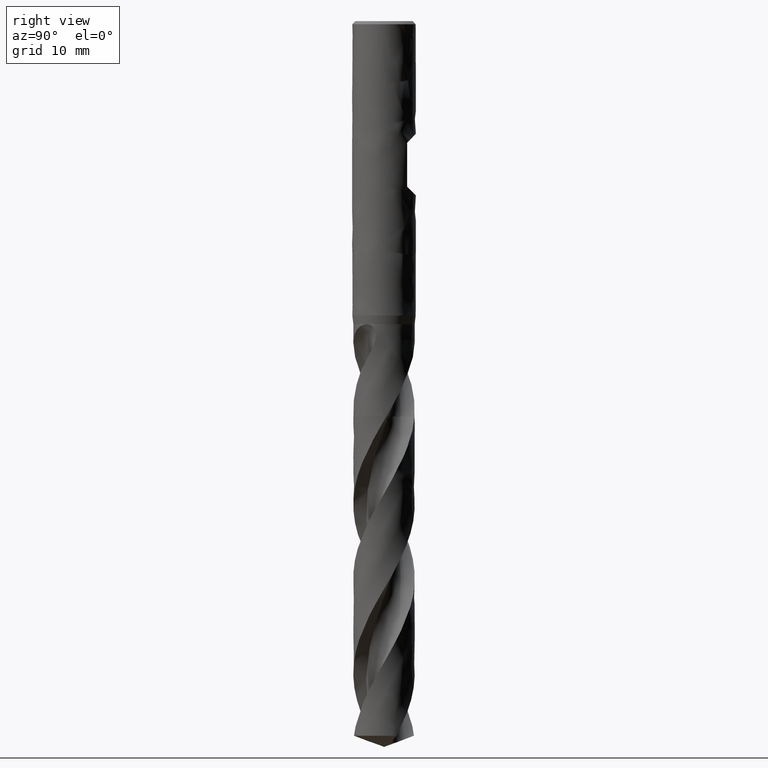
[diagram: clean part render]
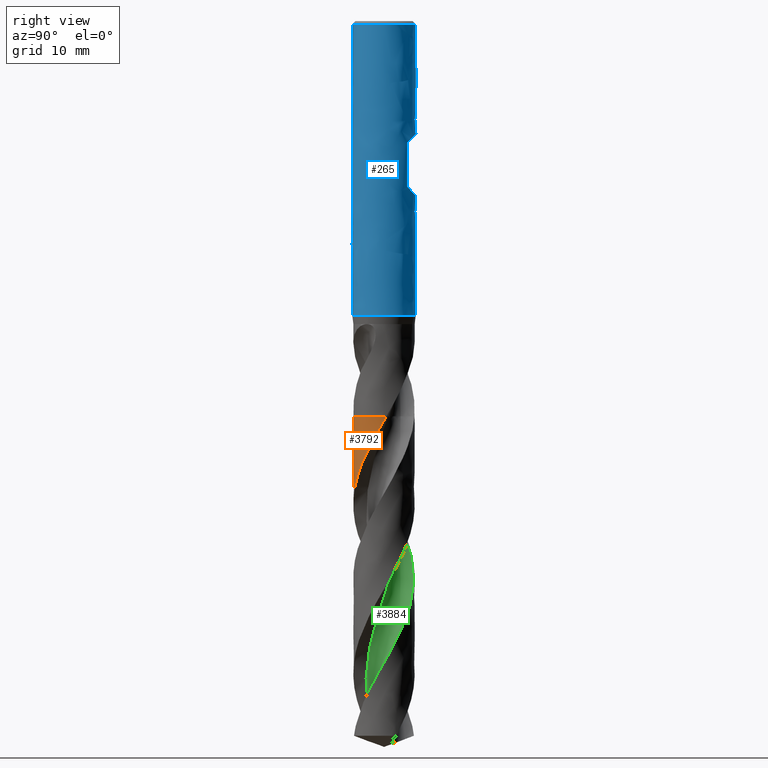
[diagram: same view with three faces highlighted in distinct colors, each labeled with its STEP entity id]
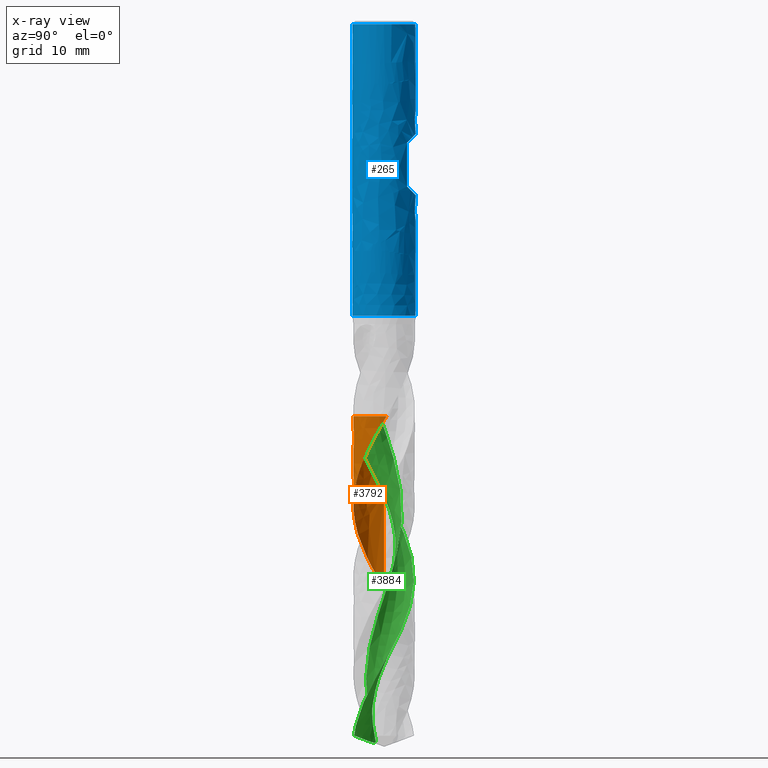
[diagram: x-ray of the same camera — body ghosted, the three highlighted faces saturated]
A machine part, right view with three faces highlighted in distinct colors.
The next image is the same camera in x-ray (body ghosted, the three faces saturated) — at least one of them is partly hidden behind the body in this view.
Their STEP definitions:

[orange] entity #3792 — the highlighted face is a freeform B-spline surface patch.
#1930 = VERTEX_POINT('', #1931);
#1931 = CARTESIAN_POINT('', (-0.466234069556961, -3.82166531663676, -49.55));
#2010 = EDGE_CURVE('', #2011, #1930, #2013, .T.);
#2011 = VERTEX_POINT('', #2012);
#2012 = CARTESIAN_POINT('', (3.83800601079286, 0.303660766510749, -49.55));
#2013 = CIRCLE('', #2014, 3.85);
#2014 = AXIS2_PLACEMENT_3D('', #2015, #2016, #2017);
#2015 = CARTESIAN_POINT('', (1.85782743077238E-31, 3.03406244488757E-15, -49.55));
#2016 = DIRECTION('', (3.74939945665464E-33, 6.12323399573677E-17, -1.));
#2017 = DIRECTION('', (-1., 6.12323399573677E-17, 0.));
#3398 = EDGE_CURVE('', #2011, #3399, #3401, .T.);
#3399 = VERTEX_POINT('', #3400);
#3400 = CARTESIAN_POINT('', (-3.85, 4.59519978251764E-15, -71.1953075240469));
#3401 = B_SPLINE_CURVE_WITH_KNOTS('', 3, (#3402, #3403, #3404, #3405, #3406, #3407, #3408, #3409, #3410, #3411, #3412, #3413, #3414, #3415, #3416, #3417, #3418, #3419, #3420, #3421, #3422, #3423, #3424, #3425, #3426, #3427, #3428, #3429, #3430, #3431, #3432, #3433, #3434, #3435, #3436, #3437, #3438, #3439, #3440, #3441, #3442, #3443, #3444, #3445, #3446, #3447, #3448, #3449, #3450, #3451, #3452, #3453, #3454, #3455, #3456, #3457, #3458, #3459, #3460, #3461, #3462, #3463, #3464, #3465, #3466, #3467, #3468, #3469, #3470, #3471, #3472, #3473, #3474, #3475, #3476, #3477, #3478, #3479, #3480, #3481, #3482, #3483, #3484, #3485, #3486, #3487, #3488, #3489, #3490, #3491, #3492, #3493, #3494, #3495, #3496, #3497, #3498, #3499, #3500, #3501, #3502, #3503, #3504, #3505, #3506, #3507, #3508, #3509, #3510, #3511, #3512, #3513, #3514, #3515, #3516, #3517, #3518, #3519, #3520, #3521, #3522, #3523, #3524, #3525, #3526, #3527, #3528, #3529, #3530, #3531), .UNSPECIFIED., .F., .U., (4, 3, 3, 3, 3, 3, 3, 3, 3, 3, 3, 3, 3, 3, 3, 3, 3, 3, 3, 3, 3, 3, 3, 3, 3, 3, 3, 3, 3, 3, 3, 3, 3, 3, 3, 3, 3, 3, 3, 3, 3, 3, 3, 4), (10.9857827631477, 11.188417739098, 11.4837201776455, 11.5712738476636, 11.62965585615, 12.2960882243106, 12.9623371352114, 13.6284118787598, 14.2943172719508, 14.960058236566, 15.6256386833556, 16.2910615719719, 16.9563293275744, 17.6214440337716, 18.2864071459314, 18.9512194453559, 19.6158810105021, 20.2803912615972, 20.9447493495559, 21.608953908022, 22.2730028992134, 22.9368935374582, 23.6006222185998, 23.7319343610657, 23.7903196670728, 24.4567414647797, 25.1229833398523, 25.7890518383752, 26.4549525460622, 27.1206901327414, 27.7862683922648, 28.4516903106396, 29.1169584224096, 29.7820747374945, 30.4470406419059, 31.1118568765424, 31.7765235141929, 32.4410400979626, 33.105405801609, 33.7696192245882, 34.4336783239857, 35.0975803406812, 35.7613217687518, 35.9290390869403), .UNSPECIFIED.);
#3402 = CARTESIAN_POINT('', (3.83800601079286, 0.303660766510749, -49.55));
#3403 = CARTESIAN_POINT('', (3.8406597006322, 0.270120452194859, -49.608569029255));
#3404 = CARTESIAN_POINT('', (3.84287393979801, 0.236541148428157, -49.6671486422412));
#3405 = CARTESIAN_POINT('', (3.84464734947737, 0.202945209741275, -49.7257190602344));
#3406 = CARTESIAN_POINT('', (3.84723176117826, 0.153985435778242, -49.8110744495448));
#3407 = CARTESIAN_POINT('', (3.84888080603868, 0.104976243516454, -49.8964349491654));
#3408 = CARTESIAN_POINT('', (3.84959334240378, 0.0559562161021219, -49.9817919075163));
#3409 = CARTESIAN_POINT('', (3.84980460098361, 0.0414223594715328, -50.0070992331244));
#3410 = CARTESIAN_POINT('', (3.84993355132485, 0.0268872853742352, -50.032406680502));
#3411 = CARTESIAN_POINT('', (3.84998018530962, 0.0123520331640183, -50.0577140433958));
#3412 = CARTESIAN_POINT('', (3.85001128150119, 0.00265972423267838, -50.0745893459951));
#3413 = CARTESIAN_POINT('', (3.85000577691238, -0.00703270454643437, -50.0914646868949));
#3414 = CARTESIAN_POINT('', (3.84996367208802, -0.0167249395367963, -50.1083400080855));
#3415 = CARTESIAN_POINT('', (3.84948304426219, -0.127362091030246, -50.3009723027961));
#3416 = CARTESIAN_POINT('', (3.84422865657569, -0.238001535680308, -50.4936503107669));
#3417 = CARTESIAN_POINT('', (3.83422389558296, -0.348176849520702, -50.6862880958372));
#3418 = CARTESIAN_POINT('', (3.82422188872722, -0.458321834010137, -50.87887285107));
#3419 = CARTESIAN_POINT('', (3.80946771818799, -0.568053307828705, -51.0715061598658));
#3420 = CARTESIAN_POINT('', (3.79002458757251, -0.676914784589994, -51.264098966706));
#3421 = CARTESIAN_POINT('', (3.77058653967992, -0.785747803345779, -51.4566414269285));
#3422 = CARTESIAN_POINT('', (3.74645291760008, -0.893761914520464, -51.6492315149754));
#3423 = CARTESIAN_POINT('', (3.71772580347537, -1.00050729641205, -51.8417808308007));
#3424 = CARTESIAN_POINT('', (3.68900599325625, -1.10722553815344, -52.0342811907156));
#3425 = CARTESIAN_POINT('', (3.65568196523922, -1.21272429520639, -52.2268294018581));
#3426 = CARTESIAN_POINT('', (3.61789391337796, -1.31656508822878, -52.419336939445));
#3427 = CARTESIAN_POINT('', (3.58011519232496, -1.42038024038106, -52.611796942141));
#3428 = CARTESIAN_POINT('', (3.53785754787914, -1.52258531102665, -52.8043048975619));
#3429 = CARTESIAN_POINT('', (3.49129795518707, -1.62275647837457, -52.9967720682146));
#3430 = CARTESIAN_POINT('', (3.44474958854985, -1.72290349329859, -53.1891928328124));
#3431 = CARTESIAN_POINT('', (3.39388029020878, -1.8210628702524, -53.3816613771972));
#3432 = CARTESIAN_POINT('', (3.33890281896738, -1.91682757844614, -53.5740893481465));
#3433 = CARTESIAN_POINT('', (3.2839383621557, -2.0125696169347, -53.7664717669769));
#3434 = CARTESIAN_POINT('', (3.22484253132079, -2.10596189528421, -53.9589017288472));
#3435 = CARTESIAN_POINT('', (3.16186236225687, -2.19661703584021, -54.1512913551711));
#3436 = CARTESIAN_POINT('', (3.09889687604139, -2.28725104155789, -54.343636128841));
#3437 = CARTESIAN_POINT('', (3.03201983967958, -2.37519096740074, -54.5360283246996));
#3438 = CARTESIAN_POINT('', (2.96151039042569, -2.46007239881281, -54.7283802094637));
#3439 = CARTESIAN_POINT('', (2.89101716235371, -2.54493430267002, -54.9206878423588));
#3440 = CARTESIAN_POINT('', (2.81686094903232, -2.62677797023103, -55.1130430088729));
#3441 = CARTESIAN_POINT('', (2.7393504232359, -2.70526509952671, -55.3053577314649));
#3442 = CARTESIAN_POINT('', (2.66185756376597, -2.78373433990683, -55.4976286213692));
#3443 = CARTESIAN_POINT('', (2.58097692323488, -2.85888403940126, -55.6899471586262));
#3444 = CARTESIAN_POINT('', (2.49704434736988, -2.93040432829125, -55.8822251632055));
#3445 = CARTESIAN_POINT('', (2.41313080729968, -3.00190839647637, -56.0744595593932));
#3446 = CARTESIAN_POINT('', (2.32612904043707, -3.069816809754, -56.2667415686434));
#3447 = CARTESIAN_POINT('', (2.23639991120271, -3.1338499385217, -56.4589831324085));
#3448 = CARTESIAN_POINT('', (2.14669112644084, -3.19786854892466, -56.6511811088431));
#3449 = CARTESIAN_POINT('', (2.05421563854165, -3.25804256985556, -56.8434264604821));
#3450 = CARTESIAN_POINT('', (1.95935719420639, -3.31412422602286, -57.0356316478907));
#3451 = CARTESIAN_POINT('', (1.86452034494485, -3.37019311487663, -57.2277930786763));
#3452 = CARTESIAN_POINT('', (1.76725814110251, -3.42219719987466, -57.4200016498762));
#3453 = CARTESIAN_POINT('', (1.66797416686946, -3.46992250326374, -57.61217019994));
#3454 = CARTESIAN_POINT('', (1.56871292721557, -3.51763687825581, -57.8042947462142));
#3455 = CARTESIAN_POINT('', (1.46738538487668, -3.56109630220109, -57.9964664800108));
#3456 = CARTESIAN_POINT('', (1.36441114158311, -3.60012253079307, -58.1885980892258));
#3457 = CARTESIAN_POINT('', (1.26146069506963, -3.6391397406387, -58.3806852978849));
#3458 = CARTESIAN_POINT('', (1.15681777925634, -3.67374346500184, -58.5728198467729));
#3459 = CARTESIAN_POINT('', (1.05091461640444, -3.70379244410746, -58.7649141251484));
#3460 = CARTESIAN_POINT('', (0.945036257758152, -3.7338343852641, -58.9569634119877));
#3461 = CARTESIAN_POINT('', (0.837850928209692, -3.75933715341995, -59.1490600941136));
#3462 = CARTESIAN_POINT('', (0.729800623026448, -3.78019722377421, -59.3411164989748));
#3463 = CARTESIAN_POINT('', (0.621776084141214, -3.80105231971597, -59.5331271049597));
#3464 = CARTESIAN_POINT('', (0.512838642037153, -3.8172762545525, -59.7251849390947));
#3465 = CARTESIAN_POINT('', (0.403437575832972, -3.82880374561117, -59.9172027312444));
#3466 = CARTESIAN_POINT('', (0.294063198180721, -3.84032842452135, -60.1091736803698));
#3467 = CARTESIAN_POINT('', (0.184175763604534, -3.84716416562427, -60.3011915549341));
#3468 = CARTESIAN_POINT('', (0.0742288039468324, -3.84928436006811, -60.4931696496648));
#3469 = CARTESIAN_POINT('', (0.0524768874778473, -3.84970381952914, -60.5311506133354));
#3470 = CARTESIAN_POINT('', (0.0307214690042521, -3.84993889463845, -60.5691320553479));
#3471 = CARTESIAN_POINT('', (0.00896604345663941, -3.84998955973451, -60.6071132916357));
#3472 = CARTESIAN_POINT('', (-0.000707069433455552, -3.85001208695158, -60.6240008852851));
#3473 = CARTESIAN_POINT('', (-0.0103802394914002, -3.84999815824868, -60.6408885341667));
#3474 = CARTESIAN_POINT('', (-0.0200531578907964, -3.84994777508214, -60.6577761790855));
#3475 = CARTESIAN_POINT('', (-0.130461822495741, -3.84937269133732, -60.8505352045229));
#3476 = CARTESIAN_POINT('', (-0.240864733995843, -3.84404367760486, -61.0433417542151));
#3477 = CARTESIAN_POINT('', (-0.350803028482814, -3.83398451160261, -61.2361080127081));
#3478 = CARTESIAN_POINT('', (-0.460711641486346, -3.82392806140535, -61.4288222275658));
#3479 = CARTESIAN_POINT('', (-0.570206537894004, -3.8091393770798, -61.6215837859571));
#3480 = CARTESIAN_POINT('', (-0.678832875322091, -3.78968150738061, -61.8143051239944));
#3481 = CARTESIAN_POINT('', (-0.787430944848844, -3.77022870121532, -62.0069763100345));
#3482 = CARTESIAN_POINT('', (-0.895210652450566, -3.74610025362731, -62.1996949535274));
#3483 = CARTESIAN_POINT('', (-1.00172539476705, -3.71739777713915, -62.3923732237486));
#3484 = CARTESIAN_POINT('', (-1.10821330471165, -3.68870253115736, -62.5850029559469));
#3485 = CARTESIAN_POINT('', (-1.21348491758035, -3.65542264441597, -62.7776803064285));
#3486 = CARTESIAN_POINT('', (-1.31710516335854, -3.6176973323724, -62.9703171443625));
#3487 = CARTESIAN_POINT('', (-1.4207000260147, -3.5799812616329, -63.1629067934066));
#3488 = CARTESIAN_POINT('', (-1.52269059232123, -3.53780511005229, -63.3555440734511));
#3489 = CARTESIAN_POINT('', (-1.62265591820821, -3.49134469382556, -63.5481408902059));
#3490 = CARTESIAN_POINT('', (-1.72259731996746, -3.4448953967036, -63.7406916138698));
#3491 = CARTESIAN_POINT('', (-1.82055933731122, -3.39414300410734, -63.9332897222669));
#3492 = CARTESIAN_POINT('', (-1.91613738601963, -3.33929895605318, -64.1258476854115));
#3493 = CARTESIAN_POINT('', (-2.01169298390169, -3.28446779060351, -64.3183604176118));
#3494 = CARTESIAN_POINT('', (-2.10490941502601, -3.22552180763487, -64.5109202218185));
#3495 = CARTESIAN_POINT('', (-2.19540147640186, -3.16270649245429, -64.7034401014598));
#3496 = CARTESIAN_POINT('', (-2.28587262130903, -3.0999056964984, -64.8959154817719));
#3497 = CARTESIAN_POINT('', (-2.37366215521971, -3.03320856857617, -65.0884379438504));
#3498 = CARTESIAN_POINT('', (-2.45840798508757, -2.96289219831867, -65.2809203909816));
#3499 = CARTESIAN_POINT('', (-2.54313447818604, -2.89259187240741, -65.473358918681));
#3500 = CARTESIAN_POINT('', (-2.62485698860236, -2.8186421883365, -65.6658447191663));
#3501 = CARTESIAN_POINT('', (-2.70323948071356, -2.74134935933227, -65.8582903086561));
#3502 = CARTESIAN_POINT('', (-2.78160424725833, -2.66407400947599, -66.0506923781329));
#3503 = CARTESIAN_POINT('', (-2.8566654101441, -2.58342263556965, -66.2431418424347));
#3504 = CARTESIAN_POINT('', (-2.92811507778246, -2.49972840349967, -66.4355510240829));
#3505 = CARTESIAN_POINT('', (-2.99954866361032, -2.41605300923292, -66.6279168984898));
#3506 = CARTESIAN_POINT('', (-3.06740410090954, -2.3292989591975, -66.8203300439808));
#3507 = CARTESIAN_POINT('', (-3.13140321158257, -2.23982453029035, -67.0127031159817));
#3508 = CARTESIAN_POINT('', (-3.19538792117216, -2.15037023492416, -67.2050329001832));
#3509 = CARTESIAN_POINT('', (-3.25554688357959, -2.05815641650453, -67.3974096047342));
#3510 = CARTESIAN_POINT('', (-3.31163329407851, -1.96356434209594, -67.5897465848711));
#3511 = CARTESIAN_POINT('', (-3.36770704261567, -1.86899362261484, -67.7820401433757));
#3512 = CARTESIAN_POINT('', (-3.41973573119292, -1.77200245369665, -67.9743804486269));
#3513 = CARTESIAN_POINT('', (-3.46750618406489, -1.67299159097459, -68.1666810773206));
#3514 = CARTESIAN_POINT('', (-3.51526579053816, -1.57400320891221, -68.358938043684));
#3515 = CARTESIAN_POINT('', (-3.55879079276785, -1.47295114301325, -68.5512419179997));
#3516 = CARTESIAN_POINT('', (-3.59790357796416, -1.37025174463408, -68.7435059149305));
#3517 = CARTESIAN_POINT('', (-3.63700739803629, -1.26757588620109, -68.9357258426242));
#3518 = CARTESIAN_POINT('', (-3.6717184703276, -1.16320772033958, -69.1279928782281));
#3519 = CARTESIAN_POINT('', (-3.70189585425081, -1.05757604184317, -69.3202198670963));
#3520 = CARTESIAN_POINT('', (-3.73206622674997, -0.951968905848314, -69.5124021938779));
#3521 = CARTESIAN_POINT('', (-3.75771832098156, -0.845052302333049, -69.7046316359959));
#3522 = CARTESIAN_POINT('', (-3.77874851414, -0.7372649909529, -69.8968211043808));
#3523 = CARTESIAN_POINT('', (-3.79977373262139, -0.629503176583666, -70.0889651104854));
#3524 = CARTESIAN_POINT('', (-3.8161885652271, -0.520823125868125, -70.2811559240995));
#3525 = CARTESIAN_POINT('', (-3.82792720079552, -0.411671404654177, -70.4733071502764));
#3526 = CARTESIAN_POINT('', (-3.83966299695195, -0.302546085717027, -70.6654118977556));
#3527 = CARTESIAN_POINT('', (-3.84673017377257, -0.192899736524134, -70.8575631145927));
#3528 = CARTESIAN_POINT('', (-3.84910126568448, -0.0831832104842943, -71.0496749569801));
#3529 = CARTESIAN_POINT('', (-3.84970040438492, -0.0554595206102968, -71.098218684454));
#3530 = CARTESIAN_POINT('', (-3.85, -0.0277293729271328, -71.1467633451832));
#3531 = CARTESIAN_POINT('', (-3.85, 4.37030618227452E-15, -71.1953075240469));
#3792 = ADVANCED_FACE('', (#3793), #3869, .T.);
#3793 = FACE_OUTER_BOUND('', #3794, .T.);
#3794 = EDGE_LOOP('', (#3795, #3796, #3814, #3862, #3868));
#3795 = ORIENTED_EDGE('', *, *, #2010, .T.);
#3796 = ORIENTED_EDGE('', *, *, #3797, .T.);
#3797 = EDGE_CURVE('', #1930, #3798, #3800, .T.);
#3798 = VERTEX_POINT('', #3799);
#3799 = CARTESIAN_POINT('', (-1.45666502012637, -3.56379390806206, -51.3306105071911));
#3800 = B_SPLINE_CURVE_WITH_KNOTS('', 3, (#3801, #3802, #3803, #3804, #3805, #3806, #3807, #3808, #3809, #3810, #3811, #3812, #3813), .UNSPECIFIED., .F., .U., (4, 3, 3, 3, 4), (4.62056826105621, 5.1008620138791, 5.76693631559316, 6.43283720181329, 6.67571903307602), .UNSPECIFIED.);
#3801 = CARTESIAN_POINT('', (-0.466234069556961, -3.82166531663676, -49.55));
#3802 = CARTESIAN_POINT('', (-0.545619925295997, -3.81198043124783, -49.6886918603447));
#3803 = CARTESIAN_POINT('', (-0.624715389142582, -3.79981905662139, -49.8274253677953));
#3804 = CARTESIAN_POINT('', (-0.703333355903876, -3.78521098361412, -49.9661234670167));
#3805 = CARTESIAN_POINT('', (-0.812361231042654, -3.76495241899503, -50.158470835778));
#3806 = CARTESIAN_POINT('', (-0.92053796568616, -3.73997403876184, -50.3508631322355));
#3807 = CARTESIAN_POINT('', (-1.02740387030935, -3.71038290305356, -50.5432144784321));
#3808 = CARTESIAN_POINT('', (-1.134241951905, -3.68079947153294, -50.7355157450752));
#3809 = CARTESIAN_POINT('', (-1.23981898995678, -3.64659224590057, -50.9278657991517));
#3810 = CARTESIAN_POINT('', (-1.3436918872865, -3.60790688793929, -51.1201759562725));
#3811 = CARTESIAN_POINT('', (-1.381578666001, -3.59379672413095, -51.1903194927934));
#3812 = CARTESIAN_POINT('', (-1.41924332569911, -3.57908965037272, -51.2604658174911));
#3813 = CARTESIAN_POINT('', (-1.4566650201263, -3.56379390806209, -51.3306105071909));
#3814 = ORIENTED_EDGE('', *, *, #3815, .T.);
#3815 = EDGE_CURVE('', #3798, #3816, #3818, .T.);
#3816 = VERTEX_POINT('', #3817);
#3817 = CARTESIAN_POINT('', (-3.85, 3.86352565080285E-15, -59.2461621504713));
#3818 = B_SPLINE_CURVE_WITH_KNOTS('', 3, (#3819, #3820, #3821, #3822, #3823, #3824, #3825, #3826, #3827, #3828, #3829, #3830, #3831, #3832, #3833, #3834, #3835, #3836, #3837, #3838, #3839, #3840, #3841, #3842, #3843, #3844, #3845, #3846, #3847, #3848, #3849, #3850, #3851, #3852, #3853, #3854, #3855, #3856, #3857, #3858, #3859, #3860, #3861), .UNSPECIFIED., .F., .U., (4, 3, 3, 3, 3, 3, 3, 3, 3, 3, 3, 3, 3, 3, 4), (0., 0.665672393701589, 1.3311833576744, 1.99653631614583, 2.66173367267049, 3.32677704485421, 3.99166738304427, 4.65640534694408, 5.32099112008307, 5.98542423593742, 6.64970352953601, 7.31382709259064, 7.9777925041051, 8.64159691544613, 9.13124469862943), .UNSPECIFIED.);
#3819 = CARTESIAN_POINT('', (-1.45666502012637, -3.56379390806206, -51.3306105071911));
#3820 = CARTESIAN_POINT('', (-1.55922760694566, -3.52187247925683, -51.5228578369119));
#3821 = CARTESIAN_POINT('', (-1.65999314968207, -3.47551354918123, -51.7151556139758));
#3822 = CARTESIAN_POINT('', (-1.75853963301689, -3.42491435792325, -51.9074154346855));
#3823 = CARTESIAN_POINT('', (-1.85706221821169, -3.37432743728639, -52.0996286311833));
#3824 = CARTESIAN_POINT('', (-1.95341295537382, -3.31947866988887, -52.291892695357));
#3825 = CARTESIAN_POINT('', (-2.04718998331014, -3.26060012455294, -52.4841186956053));
#3826 = CARTESIAN_POINT('', (-2.14094474672023, -3.20173555815135, -52.6762990575888));
#3827 = CARTESIAN_POINT('', (-2.23217009410771, -3.13881614152388, -52.8685305848131));
#3828 = CARTESIAN_POINT('', (-2.32048730592337, -3.0721065513827, -53.0607236779569));
#3829 = CARTESIAN_POINT('', (-2.40878386354352, -3.0054125621973, -53.2528718241006));
#3830 = CARTESIAN_POINT('', (-2.49421338934431, -2.93490017035575, -53.4450711802976));
#3831 = CARTESIAN_POINT('', (-2.57642202907615, -2.86086517125346, -53.6372321513839));
#3832 = CARTESIAN_POINT('', (-2.65861163860128, -2.7868473102688, -53.8293486397612));
#3833 = CARTESIAN_POINT('', (-2.73761911449451, -2.70927488113451, -54.0215159954706));
#3834 = CARTESIAN_POINT('', (-2.81311699278049, -2.62847347046335, -54.2136454392654));
#3835 = CARTESIAN_POINT('', (-2.88859749815169, -2.54769065310969, -54.4057306719046));
#3836 = CARTESIAN_POINT('', (-2.96060521266316, -2.46364263404195, -54.5978662569824));
#3837 = CARTESIAN_POINT('', (-3.02884143860414, -2.37668246507487, -54.7899642875587));
#3838 = CARTESIAN_POINT('', (-3.09706202670848, -2.28974222494908, -54.982018294633));
#3839 = CARTESIAN_POINT('', (-3.16154490369304, -2.1998503612591, -55.1741226561259));
#3840 = CARTESIAN_POINT('', (-3.22202345147219, -2.10738341982735, -55.366189325875));
#3841 = CARTESIAN_POINT('', (-3.28248815277845, -2.01493764856329, -55.5582120222479));
#3842 = CARTESIAN_POINT('', (-3.33897821598286, -1.91987546990003, -55.7502853739222));
#3843 = CARTESIAN_POINT('', (-3.39126136369393, -1.82259330710851, -55.9423207090014));
#3844 = CARTESIAN_POINT('', (-3.44353250181395, -1.72533349031267, -56.1343119330058));
#3845 = CARTESIAN_POINT('', (-3.49162215885457, -1.62581104814568, -56.3263540256896));
#3846 = CARTESIAN_POINT('', (-3.53533363591626, -1.52443959629732, -56.5183579565386));
#3847 = CARTESIAN_POINT('', (-3.57903499337697, -1.42309161285387, -56.7103174367467));
#3848 = CARTESIAN_POINT('', (-3.6183797249224, -1.31985016483848, -56.9023276059716));
#3849 = CARTESIAN_POINT('', (-3.65320741177322, -1.21514427397129, -57.0942999297062));
#3850 = CARTESIAN_POINT('', (-3.68802693378333, -1.11046292986552, -57.2862272483434));
#3851 = CARTESIAN_POINT('', (-3.71834744022811, -1.00426987207032, -57.4782047127823));
#3852 = CARTESIAN_POINT('', (-3.74404566452303, -0.897007280888152, -57.6701448502133));
#3853 = CARTESIAN_POINT('', (-3.76973776915291, -0.789770232759927, -57.8620392798422));
#3854 = CARTESIAN_POINT('', (-3.79082180252473, -0.681414032877766, -58.0539836114666));
#3855 = CARTESIAN_POINT('', (-3.80721292890844, -0.572389477499845, -58.2458906674981));
#3856 = CARTESIAN_POINT('', (-3.82360008072638, -0.463391358698319, -58.4377511893748));
#3857 = CARTESIAN_POINT('', (-3.83530421009536, -0.353674885753003, -58.6296618613033));
#3858 = CARTESIAN_POINT('', (-3.84227965106878, -0.243694651116912, -58.8215349436113));
#3859 = CARTESIAN_POINT('', (-3.84742500586156, -0.162568980417089, -58.9630679430905));
#3860 = CARTESIAN_POINT('', (-3.85, -0.0812766390948183, -59.1046222373673));
#3861 = CARTESIAN_POINT('', (-3.85, 2.09410770530651E-15, -59.2461621504713));
#3862 = ORIENTED_EDGE('', *, *, #3863, .T.);
#3863 = EDGE_CURVE('', #3816, #3399, #3864, .T.);
#3864 = LINE('', #3865, #3866);
#3865 = CARTESIAN_POINT('', (-3.85, 3.86352565080285E-15, -59.2461621504713));
#3866 = VECTOR('', #3867, 11.9491453735756);
#3867 = DIRECTION('', (0., 7.31674131714791E-16, -11.9491453735756));
#3868 = ORIENTED_EDGE('', *, *, #3398, .F.);
#3869 = (
   BOUNDED_SURFACE ()
   B_SPLINE_SURFACE (2, 1, ((#3870, #3871), (#3872, #3873), (#3874, #3875), (#3876, #3877), (#3878, #3879), (#3880, #3881), (#3882, #3883)), .UNSPECIFIED., .F., .F., .U.)
   B_SPLINE_SURFACE_WITH_KNOTS ((3, 2, 2, 3), (2, 2), (11.7627610006388, 12.0951317163207, 18.1426975744811, 24.1902634326414), (0.223842785425334, 0.643335939327551), .UNSPECIFIED.)
   GEOMETRIC_REPRESENTATION_ITEM ()
   RATIONAL_B_SPLINE_SURFACE (((0.969574906929634, 0.969574906929634), (0.983902758392611, 0.983902758392611), (1., 1.), (0.707106781186548, 0.707106781186548), (1., 1.), (0.707106781186548, 0.707106781186548), (1., 1.)))
   REPRESENTATION_ITEM ('')
   SURFACE ()
);
#3870 = CARTESIAN_POINT('', (3.83800601079285, 0.303660766510884, -49.55));
#3871 = CARTESIAN_POINT('', (3.83800601079285, 0.303660766510885, -71.1953075240469));
#3872 = CARTESIAN_POINT('', (3.85, 0.152067252474267, -49.55));
#3873 = CARTESIAN_POINT('', (3.85, 0.152067252474268, -71.1953075240469));
#3874 = CARTESIAN_POINT('', (3.85, 3.26980695372343E-15, -49.55));
#3875 = CARTESIAN_POINT('', (3.85, 4.59519978251764E-15, -71.1953075240469));
#3876 = CARTESIAN_POINT('', (3.85, -3.85, -49.55));
#3877 = CARTESIAN_POINT('', (3.85, -3.84999999999999, -71.1953075240469));
#3878 = CARTESIAN_POINT('', (4.71489017671731E-16, -3.85, -49.55));
#3879 = CARTESIAN_POINT('', (4.71489017671731E-16, -3.85, -71.1953075240469));
#3880 = CARTESIAN_POINT('', (-3.85, -3.85, -49.55));
#3881 = CARTESIAN_POINT('', (-3.85, -3.85, -71.1953075240469));
#3882 = CARTESIAN_POINT('', (-3.85, 3.26980695372343E-15, -49.55));
#3883 = CARTESIAN_POINT('', (-3.85, 4.59519978251764E-15, -71.1953075240469));

[blue] entity #265 — the highlighted face is a freeform B-spline surface patch.
#146 = VERTEX_POINT('', #147);
#147 = CARTESIAN_POINT('', (-4., 2.5053211893557E-15, -36.915));
#153 = EDGE_CURVE('', #146, #146, #154, .T.);
#154 = CIRCLE('', #155, 4.);
#155 = AXIS2_PLACEMENT_3D('', #156, #157, #158);
#156 = CARTESIAN_POINT('', (1.38409080942406E-31, 2.26039182952623E-15, -36.915));
#157 = DIRECTION('', (3.74939945665464E-33, 6.12323399573677E-17, -1.));
#158 = DIRECTION('', (-1., 6.12323399573677E-17, 0.));
#214 = VERTEX_POINT('', #215);
#215 = CARTESIAN_POINT('', (-4., 2.69422295812418E-16, -0.399999999999999));
#231 = EDGE_CURVE('', #214, #214, #232, .T.);
#232 = CIRCLE('', #233, 4.);
#233 = AXIS2_PLACEMENT_3D('', #234, #235, #236);
#234 = CARTESIAN_POINT('', (1.49975978266185E-33, 2.44929359829471E-17, -0.399999999999999));
#235 = DIRECTION('', (3.74939945665464E-33, 6.12323399573677E-17, -1.));
#236 = DIRECTION('', (-1., 6.12323399573677E-17, 0.));
#265 = ADVANCED_FACE('', (#266, #277), #448, .T.);
#266 = FACE_OUTER_BOUND('', #267, .T.);
#267 = EDGE_LOOP('', (#268, #274, #275, #276));
#268 = ORIENTED_EDGE('', *, *, #269, .T.);
#269 = EDGE_CURVE('', #146, #214, #270, .T.);
#270 = LINE('', #271, #272);
#271 = CARTESIAN_POINT('', (-4., 2.5053211893557E-15, -36.915));
#272 = VECTOR('', #273, 36.515);
#273 = DIRECTION('', (0., -2.23589889354328E-15, 36.515));
#274 = ORIENTED_EDGE('', *, *, #231, .T.);
#275 = ORIENTED_EDGE('', *, *, #269, .F.);
#276 = ORIENTED_EDGE('', *, *, #153, .F.);
#277 = FACE_BOUND('', #278, .T.);
#278 = EDGE_LOOP('', (#279, #356, #364, #442));
#279 = ORIENTED_EDGE('', *, *, #280, .F.);
#280 = EDGE_CURVE('', #281, #283, #285, .T.);
#281 = VERTEX_POINT('', #282);
#282 = CARTESIAN_POINT('', (-2.75499546279118, 2.9, -15.25));
#283 = VERTEX_POINT('', #284);
#284 = CARTESIAN_POINT('', (2.75499546279118, 2.9, -15.25));
#285 = B_SPLINE_CURVE_WITH_KNOTS('', 3, (#286, #287, #288, #289, #290, #291, #292, #293, #294, #295, #296, #297, #298, #299, #300, #301, #302, #303, #304, #305, #306, #307, #308, #309, #310, #311, #312, #313, #314, #315, #316, #317, #318, #319, #320, #321, #322, #323, #324, #325, #326, #327, #328, #329, #330, #331, #332, #333, #334, #335, #336, #337, #338, #339, #340, #341, #342, #343, #344, #345, #346, #347, #348, #349, #350, #351, #352, #353, #354, #355), .UNSPECIFIED., .F., .U., (4, 3, 3, 3, 3, 3, 3, 3, 3, 3, 3, 3, 3, 3, 3, 3, 3, 3, 3, 3, 3, 3, 3, 4), (0., 0.0275651498824168, 0.323329754227843, 0.619223800657675, 0.915270205533211, 1.21149541087731, 1.50792863848376, 1.80460015310044, 2.10153821450145, 2.39876467460959, 2.69628978664823, 2.99410761532925, 3.29009749181974, 3.58608736831022, 3.88390519699124, 4.18143030902988, 4.47865676913802, 4.77559483053904, 5.07226634515571, 5.36869957276216, 5.66492477810626, 5.96097118298179, 6.25686522941163, 6.58019498363947), .UNSPECIFIED.);
#286 = CARTESIAN_POINT('', (-2.75499546279118, 2.9, -15.25));
#287 = CARTESIAN_POINT('', (-2.7495403313511, 2.90518236633323, -15.2447263857062));
#288 = CARTESIAN_POINT('', (-2.74406521982218, 2.91035442984719, -15.2394632556375));
#289 = CARTESIAN_POINT('', (-2.73857013102126, 2.91551601564427, -15.2342107877709));
#290 = CARTESIAN_POINT('', (-2.67960971281275, 2.97089806100157, -15.1778536089774));
#291 = CARTESIAN_POINT('', (-2.61831798837027, 3.0251023412273, -15.122694932689));
#292 = CARTESIAN_POINT('', (-2.55471049779374, 3.07789770337849, -15.0689699818493));
#293 = CARTESIAN_POINT('', (-2.49107516924727, 3.13071617154582, -15.0152215181567));
#294 = CARTESIAN_POINT('', (-2.42505948854959, 3.18217572696542, -14.9628558941227));
#295 = CARTESIAN_POINT('', (-2.35670846888833, 3.23201565476873, -14.9121384151249));
#296 = CARTESIAN_POINT('', (-2.28832225468618, 3.28188124558901, -14.8613948212512));
#297 = CARTESIAN_POINT('', (-2.21752118151808, 3.33018085032992, -14.8122447863892));
#298 = CARTESIAN_POINT('', (-2.14439231660005, 3.37662280874054, -14.7649851061665));
#299 = CARTESIAN_POINT('', (-2.07121928470315, 3.42309281628059, -14.7176968829422));
#300 = CARTESIAN_POINT('', (-1.99562068806062, 3.46776202565152, -14.6722411652482));
#301 = CARTESIAN_POINT('', (-1.91774147403305, 3.51030876687135, -14.628945286836));
#302 = CARTESIAN_POINT('', (-1.83980756982381, 3.55288538626901, -14.5856190041692));
#303 = CARTESIAN_POINT('', (-1.75947339354897, 3.59339861346788, -14.5443924446584));
#304 = CARTESIAN_POINT('', (-1.6769604661359, 3.63150156202879, -14.5056186025088));
#305 = CARTESIAN_POINT('', (-1.59438121093989, 3.66963513953696, -14.466813592116));
#306 = CARTESIAN_POINT('', (-1.50947809076678, 3.70541802112886, -14.4304006672663));
#307 = CARTESIAN_POINT('', (-1.42256919709379, 3.73848858223216, -14.3967478197978));
#308 = CARTESIAN_POINT('', (-1.33558221946264, 3.77158885583323, -14.363064736672));
#309 = CARTESIAN_POINT('', (-1.2464160027603, 3.80203429897799, -14.3320832286455));
#310 = CARTESIAN_POINT('', (-1.15550315645899, 3.82946634081219, -14.3041681800707));
#311 = CARTESIAN_POINT('', (-1.06450201178593, 3.85692502579669, -14.2762260192292));
#312 = CARTESIAN_POINT('', (-0.971551110465514, 3.88142225604713, -14.251297456619));
#313 = CARTESIAN_POINT('', (-0.877208103576912, 3.90262808156492, -14.2297182517981));
#314 = CARTESIAN_POINT('', (-0.782770301221156, 3.92385521460939, -14.2081173642804));
#315 = CARTESIAN_POINT('', (-0.686708873945093, 3.94183334457734, -14.1898226863132));
#316 = CARTESIAN_POINT('', (-0.589703064917672, 3.95629249363931, -14.1751089493317));
#317 = CARTESIAN_POINT('', (-0.492601817846333, 3.97076586816795, -14.1603807364101));
#318 = CARTESIAN_POINT('', (-0.394300865590991, 3.98174917183471, -14.1492040453995));
#319 = CARTESIAN_POINT('', (-0.295578376007088, 3.98906422906892, -14.141760189078));
#320 = CARTESIAN_POINT('', (-0.197461827282699, 3.99633438779939, -14.1343620218058));
#321 = CARTESIAN_POINT('', (-0.0986632921634954, 4., -14.1306318677307));
#322 = CARTESIAN_POINT('', (1.22464679914735E-16, 4., -14.1306318677307));
#323 = CARTESIAN_POINT('', (0.0986632921634953, 4., -14.1306318677307));
#324 = CARTESIAN_POINT('', (0.197461827282699, 3.99633438779939, -14.1343620218057));
#325 = CARTESIAN_POINT('', (0.295578376007088, 3.98906422906892, -14.1417601890779));
#326 = CARTESIAN_POINT('', (0.394300865590992, 3.98174917183471, -14.1492040453995));
#327 = CARTESIAN_POINT('', (0.492601817846333, 3.97076586816795, -14.1603807364101));
#328 = CARTESIAN_POINT('', (0.589703064917672, 3.95629249363931, -14.1751089493317));
#329 = CARTESIAN_POINT('', (0.686708873945093, 3.94183334457734, -14.1898226863132));
#330 = CARTESIAN_POINT('', (0.782770301221156, 3.92385521460939, -14.2081173642804));
#331 = CARTESIAN_POINT('', (0.877208103576912, 3.90262808156492, -14.2297182517981));
#332 = CARTESIAN_POINT('', (0.971551110465513, 3.88142225604713, -14.251297456619));
#333 = CARTESIAN_POINT('', (1.06450201178593, 3.85692502579669, -14.2762260192292));
#334 = CARTESIAN_POINT('', (1.15550315645899, 3.82946634081219, -14.3041681800707));
#335 = CARTESIAN_POINT('', (1.2464160027603, 3.80203429897799, -14.3320832286455));
#336 = CARTESIAN_POINT('', (1.33558221946264, 3.77158885583323, -14.363064736672));
#337 = CARTESIAN_POINT('', (1.4225691970938, 3.73848858223216, -14.3967478197978));
#338 = CARTESIAN_POINT('', (1.50947809076678, 3.70541802112886, -14.4304006672663));
#339 = CARTESIAN_POINT('', (1.59438121093989, 3.66963513953696, -14.466813592116));
#340 = CARTESIAN_POINT('', (1.6769604661359, 3.63150156202879, -14.5056186025088));
#341 = CARTESIAN_POINT('', (1.75947339354897, 3.59339861346788, -14.5443924446584));
#342 = CARTESIAN_POINT('', (1.83980756982381, 3.55288538626901, -14.5856190041692));
#343 = CARTESIAN_POINT('', (1.91774147403305, 3.51030876687135, -14.628945286836));
#344 = CARTESIAN_POINT('', (1.99562068806062, 3.46776202565152, -14.6722411652482));
#345 = CARTESIAN_POINT('', (2.07121928470314, 3.42309281628059, -14.7176968829422));
#346 = CARTESIAN_POINT('', (2.14439231660005, 3.37662280874054, -14.7649851061665));
#347 = CARTESIAN_POINT('', (2.21752118151808, 3.33018085032992, -14.8122447863892));
#348 = CARTESIAN_POINT('', (2.28832225468618, 3.28188124558901, -14.8613948212512));
#349 = CARTESIAN_POINT('', (2.35670846888833, 3.23201565476873, -14.9121384151248));
#350 = CARTESIAN_POINT('', (2.42505948854959, 3.18217572696542, -14.9628558941227));
#351 = CARTESIAN_POINT('', (2.49107516924727, 3.13071617154582, -15.0152215181567));
#352 = CARTESIAN_POINT('', (2.55471049779373, 3.07789770337849, -15.0689699818493));
#353 = CARTESIAN_POINT('', (2.62424618256803, 3.02018183333213, -15.1277020779003));
#354 = CARTESIAN_POINT('', (2.69100864192036, 2.9607873797164, -15.1881423130012));
#355 = CARTESIAN_POINT('', (2.75499546279118, 2.9, -15.25));
#356 = ORIENTED_EDGE('', *, *, #357, .T.);
#357 = EDGE_CURVE('', #281, #358, #360, .T.);
#358 = VERTEX_POINT('', #359);
#359 = CARTESIAN_POINT('', (-2.75499546279118, 2.9, -20.75));
#360 = LINE('', #361, #362);
#361 = CARTESIAN_POINT('', (-2.75499546279118, 2.9, -15.25));
#362 = VECTOR('', #363, 5.5);
#363 = DIRECTION('', (0., 0., -5.5));
#364 = ORIENTED_EDGE('', *, *, #365, .T.);
#365 = EDGE_CURVE('', #358, #366, #368, .T.);
#366 = VERTEX_POINT('', #367);
#367 = CARTESIAN_POINT('', (2.75499546279118, 2.9, -20.75));
#368 = B_SPLINE_CURVE_WITH_KNOTS('', 3, (#369, #370, #371, #372, #373, #374, #375, #376, #377, #378, #379, #380, #381, #382, #383, #384, #385, #386, #387, #388, #389, #390, #391, #392, #393, #394, #395, #396, #397, #398, #399, #400, #401, #402, #403, #404, #405, #406, #407, #408, #409, #410, #411, #412, #413, #414, #415, #416, #417, #418, #419, #420, #421, #422, #423, #424, #425, #426, #427, #428, #429, #430, #431, #432, #433, #434, #435, #436, #437, #438, #439, #440, #441), .UNSPECIFIED., .F., .U., (4, 3, 3, 3, 3, 3, 3, 3, 3, 3, 3, 3, 3, 3, 3, 3, 3, 3, 3, 3, 3, 3, 3, 3, 4), (0., 0.443422422205695, 0.738860713972584, 1.03418677767532, 1.32938252694556, 1.62442725505234, 1.91929816542726, 2.21397155727197, 2.50842487936361, 2.80263970976592, 2.99894085104869, 3.29007345814309, 3.4872474966482, 3.68530175003223, 3.88327465622289, 4.08116298771897, 4.27896576611938, 4.57609603156437, 4.872944030885, 5.16953426674175, 5.46589607815954, 5.76205965536999, 6.05805344567496, 6.35390278155854, 6.58042418211351), .UNSPECIFIED.);
#369 = CARTESIAN_POINT('', (-2.75499546279118, 2.9, -20.75));
#370 = CARTESIAN_POINT('', (-2.66724235399505, 2.98336531606178, -20.8348331619419));
#371 = CARTESIAN_POINT('', (-2.57422027727393, 3.06415258604797, -20.9170428851383));
#372 = CARTESIAN_POINT('', (-2.47599571183059, 3.14156732141782, -20.9958206921756));
#373 = CARTESIAN_POINT('', (-2.41055180017683, 3.19314630351234, -21.048307845677));
#374 = CARTESIAN_POINT('', (-2.34271971299793, 3.24329045867949, -21.0993349086891));
#375 = CARTESIAN_POINT('', (-2.27255949630797, 3.2917280166716, -21.1486253257994));
#376 = CARTESIAN_POINT('', (-2.2024259313606, 3.34014717470163, -21.1978970189722));
#377 = CARTESIAN_POINT('', (-2.12988274348655, 3.38691749931397, -21.2454908470694));
#378 = CARTESIAN_POINT('', (-2.05503738469365, 3.43173736575396, -21.2910998745108));
#379 = CARTESIAN_POINT('', (-1.98022505187324, 3.47653745515366, -21.3366887766898));
#380 = CARTESIAN_POINT('', (-1.90301056261523, 3.51944858039199, -21.3803554549731));
#381 = CARTESIAN_POINT('', (-1.82356518022225, 3.56014185580879, -21.4217652328814));
#382 = CARTESIAN_POINT('', (-1.74416044182266, 3.60081431268123, -21.4631538256852));
#383 = CARTESIAN_POINT('', (-1.66240289395494, 3.63933314650406, -21.502350875752));
#384 = CARTESIAN_POINT('', (-1.5785460472355, 3.67534928636151, -21.5390011659373));
#385 = CARTESIAN_POINT('', (-1.4947386025406, 3.71134420827083, -21.5756298645816));
#386 = CARTESIAN_POINT('', (-1.40868478848897, 3.74490161629374, -21.6097781310747));
#387 = CARTESIAN_POINT('', (-1.32073858060278, 3.77566545150764, -21.6410836372246));
#388 = CARTESIAN_POINT('', (-1.23285128326053, 3.80640867964468, -21.6723681734607));
#389 = CARTESIAN_POINT('', (-1.14289702732146, 3.83442177081428, -21.7008745021349));
#390 = CARTESIAN_POINT('', (-1.05134422936511, 3.8593620342463, -21.726253898586));
#391 = CARTESIAN_POINT('', (-0.959859805419421, 3.88428367164094, -21.7516143410437));
#392 = CARTESIAN_POINT('', (-0.866574202102873, 3.90619059125, -21.7739069843951));
#393 = CARTESIAN_POINT('', (-0.772074452714007, 3.92478038104902, -21.7928240919284));
#394 = CARTESIAN_POINT('', (-0.677651243147186, 3.94335511409697, -21.8117258776005));
#395 = CARTESIAN_POINT('', (-0.581785251603104, 3.95866134366949, -21.827301609972));
#396 = CARTESIAN_POINT('', (-0.485170882582417, 3.97046712802094, -21.8393152634078));
#397 = CARTESIAN_POINT('', (-0.420709445077235, 3.97834398772498, -21.8473308140761));
#398 = CARTESIAN_POINT('', (-0.355823858528569, 3.98467660623896, -21.8537749334927));
#399 = CARTESIAN_POINT('', (-0.290741007327623, 3.98941971552983, -21.8586015565727));
#400 = CARTESIAN_POINT('', (-0.194217166337959, 3.99645418188373, -21.8657598815401));
#401 = CARTESIAN_POINT('', (-0.0970442023647998, 4., -21.8693681322693));
#402 = CARTESIAN_POINT('', (-7.6571373978539E-16, 4., -21.8693681322693));
#403 = CARTESIAN_POINT('', (0.0657246795017035, 4., -21.8693681322693));
#404 = CARTESIAN_POINT('', (0.131489701268732, 3.99837709119683, -21.8677166482731));
#405 = CARTESIAN_POINT('', (0.197052250671385, 3.99514335293558, -21.8644259723115));
#406 = CARTESIAN_POINT('', (0.26290748126027, 3.9918951787752, -21.8611206062723));
#407 = CARTESIAN_POINT('', (0.328639219249588, 3.98701784499982, -21.8561573953644));
#408 = CARTESIAN_POINT('', (0.394008672407499, 3.98054734503531, -21.8495729667643));
#409 = CARTESIAN_POINT('', (0.459351276247837, 3.97407950271135, -21.8429912425989));
#410 = CARTESIAN_POINT('', (0.524410480681412, 3.96601220841524, -21.8347819042819));
#411 = CARTESIAN_POINT('', (0.588961634304908, 3.95640293616776, -21.8250034378018));
#412 = CARTESIAN_POINT('', (0.65348521145742, 3.94679776903387, -21.8152291487156));
#413 = CARTESIAN_POINT('', (0.717576028180883, 3.93564105020771, -21.8038759891568));
#414 = CARTESIAN_POINT('', (0.781028734224059, 3.92300829929231, -21.7910208084317));
#415 = CARTESIAN_POINT('', (0.844454007748152, 3.91038100989625, -21.7781711853891));
#416 = CARTESIAN_POINT('', (0.907311809061332, 3.8962653083265, -21.7638069431147));
#417 = CARTESIAN_POINT('', (0.969419520729961, 3.88075067388098, -21.7480191364037));
#418 = CARTESIAN_POINT('', (1.06271487787062, 3.85744530128533, -21.7243034169544));
#419 = CARTESIAN_POINT('', (1.1544914336299, 3.83093536499364, -21.6973267097968));
#420 = CARTESIAN_POINT('', (1.24423289780537, 3.8015634278569, -21.6674376094205));
#421 = CARTESIAN_POINT('', (1.33388910989368, 3.77221939330641, -21.6375769029223));
#422 = CARTESIAN_POINT('', (1.42170364387654, 3.73995917363383, -21.6047486648846));
#423 = CARTESIAN_POINT('', (1.50728302186432, 3.70514478691452, -21.5693212875772));
#424 = CARTESIAN_POINT('', (1.59278808829549, 3.67036063074058, -21.5339246730963));
#425 = CARTESIAN_POINT('', (1.67622194287627, 3.6329637909704, -21.4958693724724));
#426 = CARTESIAN_POINT('', (1.75730026868263, 3.59331264513516, -21.4555200733306));
#427 = CARTESIAN_POINT('', (1.83831615052138, 3.55369203736101, -21.4152018499456));
#428 = CARTESIAN_POINT('', (1.91711291663925, 3.5117574647968, -21.3725289188831));
#429 = CARTESIAN_POINT('', (1.99349629595741, 3.4678483989362, -21.3278467288449));
#430 = CARTESIAN_POINT('', (2.06982858300231, 3.42396870352257, -21.2831944263906));
#431 = CARTESIAN_POINT('', (2.14385956949714, 3.37805601840628, -21.2364733385851));
#432 = CARTESIAN_POINT('', (2.21546518868422, 3.33042249537931, -21.1880011133995));
#433 = CARTESIAN_POINT('', (2.28702975725796, 3.2828162800603, -21.1395566767395));
#434 = CARTESIAN_POINT('', (2.35626036779492, 3.23343335123207, -21.0893042432772));
#435 = CARTESIAN_POINT('', (2.42308530146576, 3.18255520326368, -21.0375302637639));
#436 = CARTESIAN_POINT('', (2.4898776224351, 3.13170188545614, -20.9857815516058));
#437 = CARTESIAN_POINT('', (2.55433855419146, 3.07930087109134, -20.9324578919889));
#438 = CARTESIAN_POINT('', (2.61643396066481, 3.02560296957151, -20.8778145104152));
#439 = CARTESIAN_POINT('', (2.66397822301836, 2.98448838054326, -20.8359760006611));
#440 = CARTESIAN_POINT('', (2.710166973946, 2.9425869942663, -20.7933368402098));
#441 = CARTESIAN_POINT('', (2.75499546279118, 2.9, -20.75));
#442 = ORIENTED_EDGE('', *, *, #443, .F.);
#443 = EDGE_CURVE('', #283, #366, #444, .T.);
#444 = LINE('', #445, #446);
#445 = CARTESIAN_POINT('', (2.75499546279118, 2.9, -15.25));
#446 = VECTOR('', #447, 5.5);
#447 = DIRECTION('', (0., 0., -5.5));
#448 = (
   BOUNDED_SURFACE ()
   B_SPLINE_SURFACE (1, 2, ((#449, #450, #451, #452, #453, #454, #455, #456, #457), (#458, #459, #460, #461, #462, #463, #464, #465, #466)), .UNSPECIFIED., .F., .T., .U.)
   B_SPLINE_SURFACE_WITH_KNOTS ((2, 2), (3, 2, 2, 2, 3), (0., 1.), (0., 6.28318530717959, 12.5663706143592, 18.8495559215388, 25.1327412287183), .UNSPECIFIED.)
   GEOMETRIC_REPRESENTATION_ITEM ()
   RATIONAL_B_SPLINE_SURFACE (((1., 0.707106781186548, 1., 0.707106781186548, 1., 0.707106781186548, 1., 0.707106781186548, 1.), (1., 0.707106781186548, 1., 0.707106781186548, 1., 0.707106781186548, 1., 0.707106781186548, 1.)))
   REPRESENTATION_ITEM ('')
   SURFACE ()
);
#449 = CARTESIAN_POINT('', (-4., 2.5053211893557E-15, -36.915));
#450 = CARTESIAN_POINT('', (-4., 4., -36.915));
#451 = CARTESIAN_POINT('', (1.4791141972894E-31, 4., -36.915));
#452 = CARTESIAN_POINT('', (4., 4., -36.915));
#453 = CARTESIAN_POINT('', (4., 2.5053211893557E-15, -36.915));
#454 = CARTESIAN_POINT('', (4., -4., -36.915));
#455 = CARTESIAN_POINT('', (4.89858719658941E-16, -4., -36.915));
#456 = CARTESIAN_POINT('', (-4., -4., -36.915));
#457 = CARTESIAN_POINT('', (-4., 2.5053211893557E-15, -36.915));
#458 = CARTESIAN_POINT('', (-4., 2.69422295812418E-16, -0.399999999999999));
#459 = CARTESIAN_POINT('', (-4., 4., -0.399999999999998));
#460 = CARTESIAN_POINT('', (0., 4., -0.399999999999998));
#461 = CARTESIAN_POINT('', (4., 4., -0.399999999999998));
#462 = CARTESIAN_POINT('', (4., 2.69422295812418E-16, -0.399999999999999));
#463 = CARTESIAN_POINT('', (4., -4., -0.399999999999999));
#464 = CARTESIAN_POINT('', (4.89858719658941E-16, -4., -0.399999999999999));
#465 = CARTESIAN_POINT('', (-4., -4., -0.399999999999999));
#466 = CARTESIAN_POINT('', (-4., 2.69422295812418E-16, -0.399999999999999));

[green] entity #3884 — the highlighted face is a freeform B-spline surface patch.
#1922 = VERTEX_POINT('', #1923);
#1923 = CARTESIAN_POINT('', (-2.24983323965265, -0.501191650524549, -49.55));
#1929 = EDGE_CURVE('', #1922, #1930, #1932, .T.);
#1930 = VERTEX_POINT('', #1931);
#1931 = CARTESIAN_POINT('', (-0.466234069556961, -3.82166531663676, -49.55));
#1932 = B_SPLINE_CURVE_WITH_KNOTS('', 3, (#1933, #1934, #1935, #1936, #1937, #1938, #1939, #1940, #1941, #1942, #1943, #1944, #1945, #1946, #1947, #1948, #1949, #1950, #1951, #1952, #1953, #1954, #1955, #1956, #1957, #1958, #1959, #1960, #1961, #1962, #1963, #1964, #1965, #1966, #1967, #1968, #1969, #1970, #1971, #1972, #1973, #1974, #1975, #1976, #1977, #1978, #1979, #1980, #1981, #1982, #1983, #1984, #1985, #1986, #1987, #1988, #1989, #1990, #1991, #1992, #1993, #1994, #1995, #1996, #1997, #1998, #1999, #2000, #2001, #2002, #2003, #2004, #2005, #2006, #2007, #2008), .UNSPECIFIED., .F., .U., (4, 3, 3, 3, 3, 3, 3, 3, 3, 3, 3, 3, 3, 3, 3, 3, 3, 3, 3, 3, 3, 3, 3, 3, 3, 4), (0., 0.198088901692682, 0.395985560654532, 0.593694146046952, 0.791218018763926, 0.98855978655312, 1.18572134605706, 1.38270391323414, 1.57950804319666, 1.77613364014213, 1.97257995773266, 2.1688455899766, 2.20773125110463, 2.23367780451171, 2.43175021814858, 2.62963077565861, 2.82732357515355, 3.02483191170542, 3.22215833128962, 3.41930467179037, 3.6162720924893, 3.81306109304162, 4.00967152258799, 4.20610257933023, 4.40235280060064, 4.40692685715544), .UNSPECIFIED.);
#1933 = CARTESIAN_POINT('', (-2.24983323965265, -0.501191650524546, -49.55));
#1934 = CARTESIAN_POINT('', (-2.18430847634853, -0.509341371169211, -49.55));
#1935 = CARTESIAN_POINT('', (-2.11907363092086, -0.520313098798377, -49.55));
#1936 = CARTESIAN_POINT('', (-2.05448796143209, -0.534046410465008, -49.55));
#1937 = CARTESIAN_POINT('', (-1.98996497150471, -0.547766394129336, -49.55));
#1938 = CARTESIAN_POINT('', (-1.92597162268462, -0.564267743701342, -49.55));
#1939 = CARTESIAN_POINT('', (-1.86285965315768, -0.583459759836951, -49.55));
#1940 = CARTESIAN_POINT('', (-1.79980766288176, -0.602633536599554, -49.55));
#1941 = CARTESIAN_POINT('', (-1.73752001809649, -0.624527938019704, -49.55));
#1942 = CARTESIAN_POINT('', (-1.67633843208241, -0.649022850264866, -49.55));
#1943 = CARTESIAN_POINT('', (-1.61521400602634, -0.673494877713362, -49.55));
#1944 = CARTESIAN_POINT('', (-1.55508194897609, -0.700607238986529, -49.55));
#1945 = CARTESIAN_POINT('', (-1.49627153326969, -0.730211471666402, -49.55));
#1946 = CARTESIAN_POINT('', (-1.43751533716904, -0.759788411054685, -49.55));
#1947 = CARTESIAN_POINT('', (-1.37997124469594, -0.791906532054699, -49.55));
#1948 = CARTESIAN_POINT('', (-1.32395377701272, -0.826390285303954, -49.55));
#1949 = CARTESIAN_POINT('', (-1.26798746328392, -0.860842548726641, -49.55));
#1950 = CARTESIAN_POINT('', (-1.21344315658319, -0.897718800897812, -49.55));
#1951 = CARTESIAN_POINT('', (-1.16061843852553, -0.936817853181276, -49.55));
#1952 = CARTESIAN_POINT('', (-1.10784167717517, -0.97588140954777, -49.55));
#1953 = CARTESIAN_POINT('', (-1.05668552956693, -1.01723466832961, -49.55));
#1954 = CARTESIAN_POINT('', (-1.00742858643886, -1.06065242424017, -49.55));
#1955 = CARTESIAN_POINT('', (-0.958216262851785, -1.10403085005397, -49.55));
#1956 = CARTESIAN_POINT('', (-0.910810484988028, -1.14954866510322, -49.55));
#1957 = CARTESIAN_POINT('', (-0.865468952610682, -1.19695843266853, -49.55));
#1958 = CARTESIAN_POINT('', (-0.820168552299895, -1.24432519194513, -49.55));
#1959 = CARTESIAN_POINT('', (-0.776846674212669, -1.29366617862071, -49.55));
#1960 = CARTESIAN_POINT('', (-0.735738391365588, -1.34471365881365, -49.55));
#1961 = CARTESIAN_POINT('', (-0.694667590242893, -1.39571459491741, -49.55));
#1962 = CARTESIAN_POINT('', (-0.655732158052379, -1.44851102901015, -49.55));
#1963 = CARTESIAN_POINT('', (-0.619142981524816, -1.50281699874972, -49.55));
#1964 = CARTESIAN_POINT('', (-0.582587458608697, -1.55707301951043, -49.55));
#1965 = CARTESIAN_POINT('', (-0.548307962009516, -1.61293361585318, -49.55));
#1966 = CARTESIAN_POINT('', (-0.516489819498009, -1.670096784516, -49.55));
#1967 = CARTESIAN_POINT('', (-0.510185763646356, -1.68142239246994, -49.55));
#1968 = CARTESIAN_POINT('', (-0.503976813203508, -1.69280146335573, -49.55));
#1969 = CARTESIAN_POINT('', (-0.497864287576947, -1.70423157911069, -49.55));
#1970 = CARTESIAN_POINT('', (-0.493785689759117, -1.71185835207229, -49.55));
#1971 = CARTESIAN_POINT('', (-0.489749860379127, -1.71950815113113, -49.55));
#1972 = CARTESIAN_POINT('', (-0.48575718128164, -1.72718025251157, -49.55));
#1973 = CARTESIAN_POINT('', (-0.455277619186843, -1.78574801734146, -49.55));
#1974 = CARTESIAN_POINT('', (-0.427285574106421, -1.845678628553, -49.55));
#1975 = CARTESIAN_POINT('', (-0.401935176798117, -1.90664209416127, -49.55));
#1976 = CARTESIAN_POINT('', (-0.376609334292534, -1.96754650957585, -49.55));
#1977 = CARTESIAN_POINT('', (-0.353873599529919, -2.02959339768309, -49.55));
#1978 = CARTESIAN_POINT('', (-0.333852918723664, -2.09244177439771, -49.55));
#1979 = CARTESIAN_POINT('', (-0.313851234444083, -2.15523051773242, -49.55));
#1980 = CARTESIAN_POINT('', (-0.296522856751163, -2.21893408288718, -49.55));
#1981 = CARTESIAN_POINT('', (-0.281962834872927, -2.28320304449756, -49.55));
#1982 = CARTESIAN_POINT('', (-0.267416398641177, -2.34741203810791, -49.55));
#1983 = CARTESIAN_POINT('', (-0.255606585737227, -2.41230260615898, -49.55));
#1984 = CARTESIAN_POINT('', (-0.24659805441557, -2.47751947537949, -49.55));
#1985 = CARTESIAN_POINT('', (-0.237597820489, -2.54267627597051, -49.55));
#1986 = CARTESIAN_POINT('', (-0.231377298266493, -2.60827752144057, -49.55));
#1987 = CARTESIAN_POINT('', (-0.227970482236331, -2.67396470800331, -49.55));
#1988 = CARTESIAN_POINT('', (-0.224566775249091, -2.73959194877483, -49.55));
#1989 = CARTESIAN_POINT('', (-0.223965440121689, -2.80542435813636, -49.55));
#1990 = CARTESIAN_POINT('', (-0.226169757099158, -2.87110282446438, -49.55));
#1991 = CARTESIAN_POINT('', (-0.228372073552775, -2.93672168442005, -49.55));
#1992 = CARTESIAN_POINT('', (-0.233378941684453, -3.0023060338971, -49.55));
#1993 = CARTESIAN_POINT('', (-0.241163098829903, -3.06749876261111, -49.55));
#1994 = CARTESIAN_POINT('', (-0.24894020480692, -3.13263243741572, -49.55));
#1995 = CARTESIAN_POINT('', (-0.259503657784587, -3.1974932596684, -49.55));
#1996 = CARTESIAN_POINT('', (-0.272796043213533, -3.26172869739976, -49.55));
#1997 = CARTESIAN_POINT('', (-0.286076366816711, -3.32590584637158, -49.55));
#1998 = CARTESIAN_POINT('', (-0.302104691171292, -3.38957486071454, -49.55));
#1999 = CARTESIAN_POINT('', (-0.320794056841422, -3.45239031308101, -49.55));
#2000 = CARTESIAN_POINT('', (-0.339466371717577, -3.51514845727792, -49.55));
#2001 = CARTESIAN_POINT('', (-0.360828587575885, -3.5771679385478, -49.55));
#2002 = CARTESIAN_POINT('', (-0.384765017787317, -3.63811289169905, -49.55));
#2003 = CARTESIAN_POINT('', (-0.408679411994243, -3.69900173860345, -49.55));
#2004 = CARTESIAN_POINT('', (-0.435206384070916, -3.75892780042542, -49.55));
#2005 = CARTESIAN_POINT('', (-0.46420254178254, -3.81756714528528, -49.55));
#2006 = CARTESIAN_POINT('', (-0.464878363009066, -3.81893386822699, -49.55));
#2007 = CARTESIAN_POINT('', (-0.465555539650852, -3.8202999266566, -49.55));
#2008 = CARTESIAN_POINT('', (-0.466234069693436, -3.82166531656894, -49.55));
#2365 = VERTEX_POINT('', #2366);
#2366 = CARTESIAN_POINT('', (-2.04984903871205, -1.05382090805576, -90.1610964100838));
#2394 = EDGE_CURVE('', #2365, #1922, #2395, .T.);
#2395 = B_SPLINE_CURVE_WITH_KNOTS('', 3, (#2396, #2397, #2398, #2399, #2400, #2401, #2402, #2403, #2404, #2405, #2406, #2407, #2408, #2409, #2410, #2411, #2412, #2413, #2414, #2415, #2416, #2417, #2418, #2419, #2420, #2421, #2422, #2423, #2424, #2425, #2426, #2427, #2428, #2429, #2430, #2431, #2432, #2433, #2434, #2435, #2436, #2437, #2438, #2439, #2440, #2441, #2442, #2443, #2444, #2445, #2446, #2447, #2448, #2449, #2450, #2451, #2452, #2453, #2454, #2455, #2456), .UNSPECIFIED., .F., .U., (4, 1, 1, 1, 1, 1, 1, 1, 1, 1, 1, 1, 1, 1, 1, 1, 1, 1, 1, 1, 1, 1, 1, 1, 1, 1, 1, 1, 1, 1, 1, 1, 1, 1, 1, 1, 1, 1, 1, 1, 1, 1, 1, 1, 1, 1, 1, 1, 1, 1, 1, 1, 1, 1, 1, 1, 1, 1, 4), (0.888903589916151, 1.4152, 2.1228, 2.8304, 3.538, 4.2456, 4.9532, 5.6608, 6.3684, 7.076, 7.7836, 8.4912, 9.1988, 9.9064, 10.614, 11.3216, 12.0292, 12.7368, 13.4444, 14.152, 14.8596, 15.5672, 16.2748, 16.9824, 17.69, 18.3976, 19.1052, 19.8128, 20.5204, 21.228, 21.9356, 22.6432, 23.3508, 24.0584, 24.766, 25.4736, 26.1812, 26.8888, 27.5964, 28.304, 29.0116, 29.7192, 30.4268, 31.1344, 31.842, 32.5496, 33.2572, 33.9648, 34.6724, 35.38, 36.0876, 36.7952, 37.5028, 38.2104, 38.918, 39.6256, 40.3332, 41.0408, 41.5), .UNSPECIFIED.);
#2396 = CARTESIAN_POINT('', (-2.04984903871205, -1.05382090805575, -90.1610964100838));
#2397 = CARTESIAN_POINT('', (-2.02103381210276, -1.10648672607857, -89.9856642733892));
#2398 = CARTESIAN_POINT('', (-1.94876683453232, -1.22722222135116, -89.5743654700279));
#2399 = CARTESIAN_POINT('', (-1.81850024308474, -1.40577885511449, -88.9272));
#2400 = CARTESIAN_POINT('', (-1.65695752566754, -1.58468043073654, -88.2196));
#2401 = CARTESIAN_POINT('', (-1.47813150573799, -1.74541374954579, -87.512));
#2402 = CARTESIAN_POINT('', (-1.28402740732162, -1.88634392457731, -86.8044));
#2403 = CARTESIAN_POINT('', (-1.07680032466541, -2.0060525339964, -86.0968));
#2404 = CARTESIAN_POINT('', (-0.858733576173096, -2.10335208220542, -85.3892));
#2405 = CARTESIAN_POINT('', (-0.63221400838133, -2.17729686671851, -84.6816));
#2406 = CARTESIAN_POINT('', (-0.399706887349605, -2.22719164344341, -83.974));
#2407 = CARTESIAN_POINT('', (-0.163729993308246, -2.25259762179825, -83.2664));
#2408 = CARTESIAN_POINT('', (0.073172649456718, -2.25333585201956, -82.5588));
#2409 = CARTESIAN_POINT('', (0.308457190811953, -2.22948795730267, -81.8512));
#2410 = CARTESIAN_POINT('', (0.539606246486567, -2.18139422539123, -81.1436));
#2411 = CARTESIAN_POINT('', (0.764154807097061, -2.10964908993926, -80.436));
#2412 = CARTESIAN_POINT('', (0.979715509316002, -2.0150940595207, -79.7284));
#2413 = CARTESIAN_POINT('', (1.18400302266844, -1.89880817570458, -79.0208));
#2414 = CARTESIAN_POINT('', (1.37485731492383, -1.76209610512678, -78.3132));
#2415 = CARTESIAN_POINT('', (1.55026557106053, -1.60647399264725, -77.6056));
#2416 = CARTESIAN_POINT('', (1.70838255470915, -1.43365322359536, -76.898));
#2417 = CARTESIAN_POINT('', (1.84754921682157, -1.24552226251796, -76.1904));
#2418 = CARTESIAN_POINT('', (1.96630937387617, -1.04412675361324, -75.4828));
#2419 = CARTESIAN_POINT('', (2.06342429705999, -0.831648084004628, -74.7752));
#2420 = CARTESIAN_POINT('', (2.13788507438417, -0.610380625053208, -74.0676));
#2421 = CARTESIAN_POINT('', (2.18892262940193, -0.382707878908598, -73.36));
#2422 = CARTESIAN_POINT('', (2.21601530291157, -0.151077767360994, -72.6524));
#2423 = CARTESIAN_POINT('', (2.21889392753485, 0.0820226922978258, -71.9448));
#2424 = CARTESIAN_POINT('', (2.19754434915417, 0.314093074328645, -71.2372));
#2425 = CARTESIAN_POINT('', (2.15220737365574, 0.542645341387448, -70.5296));
#2426 = CARTESIAN_POINT('', (2.08337614204358, 0.765229497317564, -69.822));
#2427 = CARTESIAN_POINT('', (1.99179096154405, 0.979458843679851, -69.1144));
#2428 = CARTESIAN_POINT('', (1.87843164459659, 1.18303459175878, -68.4068));
#2429 = CARTESIAN_POINT('', (1.7445074314091, 1.37376958801669, -67.6992));
#2430 = CARTESIAN_POINT('', (1.5914445948387, 1.54961091943135, -66.9916));
#2431 = CARTESIAN_POINT('', (1.42087184853484, 1.70866117576986, -66.284));
#2432 = CARTESIAN_POINT('', (1.23460370035823, 1.84919815853086, -65.5764));
#2433 = CARTESIAN_POINT('', (1.03462191287736, 1.96969284091968, -64.8688));
#2434 = CARTESIAN_POINT('', (0.823055251068922, 2.06882539967932, -64.1612));
#2435 = CARTESIAN_POINT('', (0.602157714043834, 2.14549915774409, -63.4536));
#2436 = CARTESIAN_POINT('', (0.374285462535127, 2.19885229635598, -62.746));
#2437 = CARTESIAN_POINT('', (0.141872666880699, 2.22826721631667, -62.0384));
#2438 = CARTESIAN_POINT('', (-0.0925934888102592, 2.23337745026039, -61.3308));
#2439 = CARTESIAN_POINT('', (-0.32659840180795, 2.21407205103085, -60.6232));
#2440 = CARTESIAN_POINT('', (-0.557625994155189, 2.17049740522885, -59.9156));
#2441 = CARTESIAN_POINT('', (-0.783184748955086, 2.10305644555704, -59.208));
#2442 = CARTESIAN_POINT('', (-1.00083358229532, 2.01240526050244, -58.5004));
#2443 = CARTESIAN_POINT('', (-1.20820729399745, 1.89944712497245, -57.7928));
#2444 = CARTESIAN_POINT('', (-1.40304134333713, 1.76532400040794, -57.0852));
#2445 = CARTESIAN_POINT('', (-1.58319570080842, 1.61140557780638, -56.3776));
#2446 = CARTESIAN_POINT('', (-1.74667753585619, 1.43927596030362, -55.67));
#2447 = CARTESIAN_POINT('', (-1.8916625058272, 1.25071810875394, -54.9624));
#2448 = CARTESIAN_POINT('', (-2.01651444072892, 1.04769618340241, -54.2548));
#2449 = CARTESIAN_POINT('', (-2.1198031686167, 0.832335983536138, -53.5472));
#2450 = CARTESIAN_POINT('', (-2.20032048194924, 0.606903529274967, -52.8396));
#2451 = CARTESIAN_POINT('', (-2.25709337093956, 0.373782510547975, -52.132));
#2452 = CARTESIAN_POINT('', (-2.28939700108811, 0.135448871771519, -51.4244));
#2453 = CARTESIAN_POINT('', (-2.29675750173599, -0.105549955315943, -50.7168));
#2454 = CARTESIAN_POINT('', (-2.28106116815226, -0.318427098840576, -50.092));
#2455 = CARTESIAN_POINT('', (-2.25990113224322, -0.449785322491189, -49.7030666666667));
#2456 = CARTESIAN_POINT('', (-2.24983323965265, -0.501191650524549, -49.55));
#3797 = EDGE_CURVE('', #1930, #3798, #3800, .T.);
#3798 = VERTEX_POINT('', #3799);
#3799 = CARTESIAN_POINT('', (-1.45666502012637, -3.56379390806206, -51.3306105071911));
#3800 = B_SPLINE_CURVE_WITH_KNOTS('', 3, (#3801, #3802, #3803, #3804, #3805, #3806, #3807, #3808, #3809, #3810, #3811, #3812, #3813), .UNSPECIFIED., .F., .U., (4, 3, 3, 3, 4), (4.62056826105621, 5.1008620138791, 5.76693631559316, 6.43283720181329, 6.67571903307602), .UNSPECIFIED.);
#3801 = CARTESIAN_POINT('', (-0.466234069556961, -3.82166531663676, -49.55));
#3802 = CARTESIAN_POINT('', (-0.545619925295997, -3.81198043124783, -49.6886918603447));
#3803 = CARTESIAN_POINT('', (-0.624715389142582, -3.79981905662139, -49.8274253677953));
#3804 = CARTESIAN_POINT('', (-0.703333355903876, -3.78521098361412, -49.9661234670167));
#3805 = CARTESIAN_POINT('', (-0.812361231042654, -3.76495241899503, -50.158470835778));
#3806 = CARTESIAN_POINT('', (-0.92053796568616, -3.73997403876184, -50.3508631322355));
#3807 = CARTESIAN_POINT('', (-1.02740387030935, -3.71038290305356, -50.5432144784321));
#3808 = CARTESIAN_POINT('', (-1.134241951905, -3.68079947153294, -50.7355157450752));
#3809 = CARTESIAN_POINT('', (-1.23981898995678, -3.64659224590057, -50.9278657991517));
#3810 = CARTESIAN_POINT('', (-1.3436918872865, -3.60790688793929, -51.1201759562725));
#3811 = CARTESIAN_POINT('', (-1.381578666001, -3.59379672413095, -51.1903194927934));
#3812 = CARTESIAN_POINT('', (-1.41924332569911, -3.57908965037272, -51.2604658174911));
#3813 = CARTESIAN_POINT('', (-1.4566650201263, -3.56379390806209, -51.3306105071909));
#3884 = ADVANCED_FACE('', (#3885), #4082, .T.);
#3885 = FACE_OUTER_BOUND('', #3886, .T.);
#3886 = EDGE_LOOP('', (#3887, #3888, #3889, #4009, #4021, #4081));
#3887 = ORIENTED_EDGE('', *, *, #1929, .F.);
#3888 = ORIENTED_EDGE('', *, *, #2394, .F.);
#3889 = ORIENTED_EDGE('', *, *, #3890, .T.);
#3890 = EDGE_CURVE('', #2365, #3891, #3893, .T.);
#3891 = VERTEX_POINT('', #3892);
#3892 = CARTESIAN_POINT('', (0.828803960041871, -3.75973190477976, -89.5987145980751));
#3893 = B_SPLINE_CURVE_WITH_KNOTS('', 3, (#3894, #3895, #3896, #3897, #3898, #3899, #3900, #3901, #3902, #3903, #3904, #3905, #3906, #3907, #3908, #3909, #3910, #3911, #3912, #3913, #3914, #3915, #3916, #3917, #3918, #3919, #3920, #3921, #3922, #3923, #3924, #3925, #3926, #3927, #3928, #3929, #3930, #3931, #3932, #3933, #3934, #3935, #3936, #3937, #3938, #3939, #3940, #3941, #3942, #3943, #3944, #3945, #3946, #3947, #3948, #3949, #3950, #3951, #3952, #3953, #3954, #3955, #3956, #3957, #3958, #3959, #3960, #3961, #3962, #3963, #3964, #3965, #3966, #3967, #3968, #3969, #3970, #3971, #3972, #3973, #3974, #3975, #3976, #3977, #3978, #3979, #3980, #3981, #3982, #3983, #3984, #3985, #3986, #3987, #3988, #3989, #3990, #3991, #3992, #3993, #3994, #3995, #3996, #3997, #3998, #3999, #4000, #4001, #4002, #4003, #4004, #4005, #4006, #4007, #4008), .UNSPECIFIED., .F., .U., (4, 3, 3, 3, 3, 3, 3, 3, 3, 3, 3, 3, 3, 3, 3, 3, 3, 3, 3, 3, 3, 3, 3, 3, 3, 3, 3, 3, 3, 3, 3, 3, 3, 3, 3, 3, 3, 3, 4), (0., 0.131515755554209, 0.262935536234111, 0.394228564647281, 0.525362876041342, 0.656311186761404, 0.787060269039386, 0.874285728055943, 0.961468520218204, 1.04862376081464, 1.13577112472675, 1.22293293122602, 1.31013120768996, 1.39738435072795, 1.48470430632461, 1.57209510220017, 1.65955307557815, 1.74706851597976, 1.8346280304018, 1.92221689760282, 2.00982091757664, 2.1412251895478, 2.22881724497683, 2.25477403119479, 2.38685152857649, 2.51932123324268, 2.65153976091037, 2.78354431469295, 2.91536745196441, 3.0470363063868, 3.17857305576111, 3.30999560541561, 3.44131828901487, 3.63805538392632, 3.83453416627095, 4.0307857661033, 4.22683100869741, 4.42268288876568, 4.59385120482243), .UNSPECIFIED.);
#3894 = CARTESIAN_POINT('', (-2.04984903871205, -1.05382090805575, -90.1610964100838));
#3895 = CARTESIAN_POINT('', (-2.00976593493718, -1.04378613192676, -90.1757411910932));
#3896 = CARTESIAN_POINT('', (-1.96924226162379, -1.03521292008669, -90.1902654389798));
#3897 = CARTESIAN_POINT('', (-1.92841218470501, -1.02816603944221, -90.204585629027));
#3898 = CARTESIAN_POINT('', (-1.88761190392346, -1.02112430132595, -90.2188953687793));
#3899 = CARTESIAN_POINT('', (-1.84645351016361, -1.01559789063914, -90.2330197793921));
#3900 = CARTESIAN_POINT('', (-1.80507971743061, -1.0116402975039, -90.246860457511));
#3901 = CARTESIAN_POINT('', (-1.76374582905588, -1.00768652140365, -90.2606877865183));
#3902 = CARTESIAN_POINT('', (-1.72214143079077, -1.00529350955434, -90.2742506061079));
#3903 = CARTESIAN_POINT('', (-1.68041739483618, -1.00450040888755, -90.2874336829905));
#3904 = CARTESIAN_POINT('', (-1.6387437980762, -1.0037082669813, -90.300600823165));
#3905 = CARTESIAN_POINT('', (-1.59689197403353, -1.00451141162362, -90.3134077376406));
#3906 = CARTESIAN_POINT('', (-1.55502060075644, -1.00693065809522, -90.3257213513461));
#3907 = CARTESIAN_POINT('', (-1.51320861776072, -1.00934647311193, -90.3380174994438));
#3908 = CARTESIAN_POINT('', (-1.47131498720667, -1.0133778493791, -90.3498398079947));
#3909 = CARTESIAN_POINT('', (-1.42950585422107, -1.01902211059085, -90.3610385604536));
#3910 = CARTESIAN_POINT('', (-1.38776033082603, -1.02465778446489, -90.3722202748157));
#3911 = CARTESIAN_POINT('', (-1.34603383579903, -1.03191076254351, -90.3827972346066));
#3912 = CARTESIAN_POINT('', (-1.30449933216825, -1.04074858309825, -90.3926083617387));
#3913 = CARTESIAN_POINT('', (-1.27679079241332, -1.04664447881822, -90.3991535707195));
#3914 = CARTESIAN_POINT('', (-1.24914266154747, -1.05325013047556, -90.4053637374309));
#3915 = CARTESIAN_POINT('', (-1.2216077826189, -1.06054697964034, -90.4111904824013));
#3916 = CARTESIAN_POINT('', (-1.19408637254082, -1.06784025950777, -90.4170143771845));
#3917 = CARTESIAN_POINT('', (-1.16665746870929, -1.07582958416839, -90.4224594187968));
#3918 = CARTESIAN_POINT('', (-1.13937447004182, -1.08448841335332, -90.427479414336));
#3919 = CARTESIAN_POINT('', (-1.11210009336633, -1.09314450616911, -90.4324978234528));
#3920 = CARTESIAN_POINT('', (-1.08495068910812, -1.10247632228786, -90.4370950922037));
#3921 = CARTESIAN_POINT('', (-1.05797937293276, -1.11244900006011, -90.4412300405414));
#3922 = CARTESIAN_POINT('', (-1.03101049429921, -1.12242077654824, -90.4453646151817));
#3923 = CARTESIAN_POINT('', (-1.00419889443695, -1.1330409671769, -90.4490399439336));
#3924 = CARTESIAN_POINT('', (-0.977596196880686, -1.14426667959313, -90.4522229161318));
#3925 = CARTESIAN_POINT('', (-0.950989090564807, -1.15549425240219, -90.4554064158313));
#3926 = CARTESIAN_POINT('', (-0.924570582347832, -1.16733607888468, -90.4580996794563));
#3927 = CARTESIAN_POINT('', (-0.898389291003022, -1.17974234205295, -90.4602804558643));
#3928 = CARTESIAN_POINT('', (-0.872197044965917, -1.19215379621024, -90.4624621447458));
#3929 = CARTESIAN_POINT('', (-0.846222631584272, -1.2051393203046, -90.4641324716897));
#3930 = CARTESIAN_POINT('', (-0.820510050333912, -1.21864411548408, -90.4652819871296));
#3931 = CARTESIAN_POINT('', (-0.794781290309149, -1.23215740810036, -90.4664322258633));
#3932 = CARTESIAN_POINT('', (-0.769296290228174, -1.24620013017437, -90.4670618427768));
#3933 = CARTESIAN_POINT('', (-0.744093017848993, -1.26071507138038, -90.4671748120497));
#3934 = CARTESIAN_POINT('', (-0.718870446507551, -1.27524112714716, -90.4672878678268));
#3935 = CARTESIAN_POINT('', (-0.693913153623495, -1.29024966635195, -90.4668836807943));
#3936 = CARTESIAN_POINT('', (-0.669252169559759, -1.30568385600224, -90.4659787842977));
#3937 = CARTESIAN_POINT('', (-0.644571178717768, -1.3211305669862, -90.4650731536834));
#3938 = CARTESIAN_POINT('', (-0.620171858414916, -1.33701290412525, -90.4636656397022));
#3939 = CARTESIAN_POINT('', (-0.596078086561703, -1.35327694217538, -90.4617831997528));
#3940 = CARTESIAN_POINT('', (-0.571965793771578, -1.36955348242834, -90.4598993127676));
#3941 = CARTESIAN_POINT('', (-0.548146273817623, -1.38622109786217, -90.4575389624784));
#3942 = CARTESIAN_POINT('', (-0.524636722346961, -1.40323066541171, -90.4547366316982));
#3943 = CARTESIAN_POINT('', (-0.501111723182994, -1.42025140963483, -90.451932459558));
#3944 = CARTESIAN_POINT('', (-0.477885709721412, -1.43762267801617, -90.4486845923756));
#3945 = CARTESIAN_POINT('', (-0.454970178646171, -1.45530123806517, -90.4450319698795));
#3946 = CARTESIAN_POINT('', (-0.432043106983576, -1.47298870128843, -90.4413775078707));
#3947 = CARTESIAN_POINT('', (-0.409417169598787, -1.49099113820497, -90.4373165359045));
#3948 = CARTESIAN_POINT('', (-0.387099409757001, -1.50927153094021, -90.432889697308));
#3949 = CARTESIAN_POINT('', (-0.364774168280854, -1.52755805185387, -90.4284613746922));
#3950 = CARTESIAN_POINT('', (-0.342749183232638, -1.54612932549833, -90.4236654765627));
#3951 = CARTESIAN_POINT('', (-0.321028316981455, -1.56495428731578, -90.4185421888338));
#3952 = CARTESIAN_POINT('', (-0.29930369304551, -1.58378250582988, -90.4134180147819));
#3953 = CARTESIAN_POINT('', (-0.277876470779393, -1.60287039245535, -90.4079648315369));
#3954 = CARTESIAN_POINT('', (-0.256748467991957, -1.622192211679, -90.4022208731989));
#3955 = CARTESIAN_POINT('', (-0.225056887796007, -1.65117455277477, -90.3936050509585));
#3956 = CARTESIAN_POINT('', (-0.194022988956353, -1.68069681528683, -90.3843315097871));
#3957 = CARTESIAN_POINT('', (-0.163648615002193, -1.71069077060594, -90.3745169901965));
#3958 = CARTESIAN_POINT('', (-0.143401527087133, -1.73068427734234, -90.3679747832264));
#3959 = CARTESIAN_POINT('', (-0.123441630480345, -1.75089344368038, -90.3611900674978));
#3960 = CARTESIAN_POINT('', (-0.103769157782457, -1.77130237053062, -90.3541932914209));
#3961 = CARTESIAN_POINT('', (-0.0979394719085892, -1.7773502951808, -90.3521198862478));
#3962 = CARTESIAN_POINT('', (-0.0921347983715543, -1.78341601435038, -90.3500277579197));
#3963 = CARTESIAN_POINT('', (-0.0863551459288926, -1.78949916080035, -90.3479176427845));
#3964 = CARTESIAN_POINT('', (-0.0569461881344659, -1.82045240565017, -90.33718061533));
#3965 = CARTESIAN_POINT('', (-0.0281776565502662, -1.851863830071, -90.3259764053981));
#3966 = CARTESIAN_POINT('', (-5.19416386628161E-5, -1.88369188116856, -90.3143922244651));
#3967 = CARTESIAN_POINT('', (0.0281572932554398, -1.91561444642439, -90.30277364403));
#3968 = CARTESIAN_POINT('', (0.0557307182843437, -1.94796851587985, -90.290768269659));
#3969 = CARTESIAN_POINT('', (0.0826628433835105, -1.98072063448519, -90.2784491024122));
#3970 = CARTESIAN_POINT('', (0.109543902238037, -2.01341065150385, -90.2661532936493));
#3971 = CARTESIAN_POINT('', (0.13579534811611, -2.0465086061351, -90.2535404983197));
#3972 = CARTESIAN_POINT('', (0.161408087503727, -2.07998656574872, -90.2406707954433));
#3973 = CARTESIAN_POINT('', (0.186979376896009, -2.11341034680498, -90.2278219200588));
#3974 = CARTESIAN_POINT('', (0.211922177238539, -2.14722367845948, -90.2147127252892));
#3975 = CARTESIAN_POINT('', (0.236223752560066, -2.18140188402288, -90.2013929174346));
#3976 = CARTESIAN_POINT('', (0.260491929738247, -2.21553311779151, -90.1880914152595));
#3977 = CARTESIAN_POINT('', (0.284128016089439, -2.25003869396073, -90.1745757062249));
#3978 = CARTESIAN_POINT('', (0.307115814058122, -2.28489561176131, -90.160887319606));
#3979 = CARTESIAN_POINT('', (0.330076707622632, -2.31971173380555, -90.1472149535685));
#3980 = CARTESIAN_POINT('', (0.35239763654241, -2.35488878396481, -90.1333661486151));
#3981 = CARTESIAN_POINT('', (0.374059197527889, -2.39040431375139, -90.1193760628328));
#3982 = CARTESIAN_POINT('', (0.395699025191785, -2.42588421035204, -90.1054000134827));
#3983 = CARTESIAN_POINT('', (0.416687186559725, -2.46171244267502, -90.0912787531377));
#3984 = CARTESIAN_POINT('', (0.437001334644733, -2.49786628424079, -90.0770425216431));
#3985 = CARTESIAN_POINT('', (0.457297846061429, -2.53398873717489, -90.062818649992));
#3986 = CARTESIAN_POINT('', (0.476927552192156, -2.57044704958238, -90.0484756972454));
#3987 = CARTESIAN_POINT('', (0.495865403208934, -2.60721756923626, -90.0340401442716));
#3988 = CARTESIAN_POINT('', (0.514788863632313, -2.64396014751512, -90.0196155606614));
#3989 = CARTESIAN_POINT('', (0.533027268365649, -2.68102568601735, -90.0050940701007));
#3990 = CARTESIAN_POINT('', (0.550553078510373, -2.71838906735697, -89.9904993197108));
#3991 = CARTESIAN_POINT('', (0.576808839353366, -2.77436388373567, -89.9686346371293));
#3992 = CARTESIAN_POINT('', (0.601480982006385, -2.83104106494597, -89.9465928276806));
#3993 = CARTESIAN_POINT('', (0.624467099071506, -2.88832745204296, -89.9244451942606));
#3994 = CARTESIAN_POINT('', (0.647423035743334, -2.94553862305678, -89.9023266403186));
#3995 = CARTESIAN_POINT('', (0.668714439616928, -3.00340051354644, -89.88008571926));
#3996 = CARTESIAN_POINT('', (0.688228799203599, -3.06180683698159, -89.8577874076996));
#3997 = CARTESIAN_POINT('', (0.707720594922644, -3.12014562693993, -89.8355148790068));
#3998 = CARTESIAN_POINT('', (0.72545499083882, -3.1790748317084, -89.8131669630041));
#3999 = CARTESIAN_POINT('', (0.741310830201881, -3.23847158235669, -89.7908056477689));
#4000 = CARTESIAN_POINT('', (0.757149997256417, -3.29780587772087, -89.7684678453064));
#4001 = CARTESIAN_POINT('', (0.771128204329233, -3.35765892089723, -89.7460969743288));
#4002 = CARTESIAN_POINT('', (0.783117453878469, -3.41788759993745, -89.7237546522804));
#4003 = CARTESIAN_POINT('', (0.795094878241105, -3.4780568744782, -89.7014343668178));
#4004 = CARTESIAN_POINT('', (0.805098465256582, -3.53865900575288, -89.6791210525238));
#4005 = CARTESIAN_POINT('', (0.812995821445686, -3.5995267135033, -89.6568780906103));
#4006 = CARTESIAN_POINT('', (0.819897859658023, -3.65272315478456, -89.6374384491144));
#4007 = CARTESIAN_POINT('', (0.82519700844518, -3.70616809055261, -89.6180357487547));
#4008 = CARTESIAN_POINT('', (0.828803960041743, -3.75973190477979, -89.5987145980751));
#4009 = ORIENTED_EDGE('', *, *, #4010, .F.);
#4010 = EDGE_CURVE('', #4011, #3891, #4013, .T.);
#4011 = VERTEX_POINT('', #4012);
#4012 = CARTESIAN_POINT('', (1.47860287484347, -3.55474802742819, -88.3941545593001));
#4013 = B_SPLINE_CURVE_WITH_KNOTS('', 3, (#4014, #4015, #4016, #4017, #4018, #4019, #4020), .UNSPECIFIED., .F., .U., (4, 3, 4), (0., 0.664285194453883, 1.38425777289461), .UNSPECIFIED.);
#4014 = CARTESIAN_POINT('', (1.47860287484345, -3.55474802742819, -88.3941545593001));
#4015 = CARTESIAN_POINT('', (1.3778305388002, -3.59666443461896, -88.5868161450001));
#4016 = CARTESIAN_POINT('', (1.27525982576663, -3.63429790548664, -88.7795247006428));
#4017 = CARTESIAN_POINT('', (1.17130495787254, -3.66749842476624, -88.9721944867239));
#4018 = CARTESIAN_POINT('', (1.05863549767073, -3.70348216137646, -89.181015884266));
#4019 = CARTESIAN_POINT('', (0.944291621505796, -3.73427353870968, -89.3898843218203));
#4020 = CARTESIAN_POINT('', (0.828803960041744, -3.75973190477979, -89.5987145980751));
#4021 = ORIENTED_EDGE('', *, *, #4022, .T.);
#4022 = EDGE_CURVE('', #4011, #3798, #4023, .T.);
#4023 = B_SPLINE_CURVE_WITH_KNOTS('', 3, (#4024, #4025, #4026, #4027, #4028, #4029, #4030, #4031, #4032, #4033, #4034, #4035, #4036, #4037, #4038, #4039, #4040, #4041, #4042, #4043, #4044, #4045, #4046, #4047, #4048, #4049, #4050, #4051, #4052, #4053, #4054, #4055, #4056, #4057, #4058, #4059, #4060, #4061, #4062, #4063, #4064, #4065, #4066, #4067, #4068, #4069, #4070, #4071, #4072, #4073, #4074, #4075, #4076, #4077, #4078, #4079, #4080), .UNSPECIFIED., .F., .U., (4, 1, 1, 1, 1, 1, 1, 1, 1, 1, 1, 1, 1, 1, 1, 1, 1, 1, 1, 1, 1, 1, 1, 1, 1, 1, 1, 1, 1, 1, 1, 1, 1, 1, 1, 1, 1, 1, 1, 1, 1, 1, 1, 1, 1, 1, 1, 1, 1, 1, 1, 1, 1, 1, 4), (2.65584544069993, 2.8304, 3.538, 4.2456, 4.9532, 5.6608, 6.3684, 7.076, 7.7836, 8.4912, 9.1988, 9.9064, 10.614, 11.3216, 12.0292, 12.7368, 13.4444, 14.152, 14.8596, 15.5672, 16.2748, 16.9824, 17.69, 18.3976, 19.1052, 19.8128, 20.5204, 21.228, 21.9356, 22.6432, 23.3508, 24.0584, 24.766, 25.4736, 26.1812, 26.8888, 27.5964, 28.304, 29.0116, 29.7192, 30.4268, 31.1344, 31.842, 32.5496, 33.2572, 33.9648, 34.6724, 35.38, 36.0876, 36.7952, 37.5028, 38.2104, 38.918, 39.6256, 39.7193894928089), .UNSPECIFIED.);
#4024 = CARTESIAN_POINT('', (1.47860287484347, -3.55474802742819, -88.3941545593001));
#4025 = CARTESIAN_POINT('', (1.50899891323619, -3.54125268616813, -88.3359697062));
#4026 = CARTESIAN_POINT('', (1.66168900353992, -3.47109809212902, -88.0419181864334));
#4027 = CARTESIAN_POINT('', (1.92798817850143, -3.32710132306533, -87.512));
#4028 = CARTESIAN_POINT('', (2.26085924314355, -3.09943688336574, -86.8044));
#4029 = CARTESIAN_POINT('', (2.56754780254223, -2.83899736576665, -86.0968));
#4030 = CARTESIAN_POINT('', (2.84488284813949, -2.54872674866397, -85.3892));
#4031 = CARTESIAN_POINT('', (3.09001768796128, -2.23186962034524, -84.6816));
#4032 = CARTESIAN_POINT('', (3.30045786100368, -1.89193632194397, -83.974));
#4033 = CARTESIAN_POINT('', (3.47408527422992, -1.53266531939473, -83.2664));
#4034 = CARTESIAN_POINT('', (3.60917841670624, -1.15798352361185, -82.5588));
#4035 = CARTESIAN_POINT('', (3.70442845340482, -0.77196487518301, -81.8512));
#4036 = CARTESIAN_POINT('', (3.75895106658652, -0.378787636614934, -81.1436));
#4037 = CARTESIAN_POINT('', (3.77229394795049, 0.0173091850948869, -80.436));
#4038 = CARTESIAN_POINT('', (3.74443988893494, 0.412069848817962, -79.7284));
#4039 = CARTESIAN_POINT('', (3.67580545872329, 0.801265886238859, -79.0208));
#4040 = CARTESIAN_POINT('', (3.56723530210052, 1.18073967076037, -78.3132));
#4041 = CARTESIAN_POINT('', (3.41999213117681, 1.54644712023531, -77.6056));
#4042 = CARTESIAN_POINT('', (3.2357425259841, 1.89449911562237, -76.898));
#4043 = CARTESIAN_POINT('', (3.01653869864158, 2.22120123177075, -76.1904));
#4044 = CARTESIAN_POINT('', (2.76479641384905, 2.52309139430292, -75.4828));
#4045 = CARTESIAN_POINT('', (2.48326929456953, 2.79697509782601, -74.7752));
#4046 = CARTESIAN_POINT('', (2.17501977559674, 3.03995784524605, -74.0676));
#4047 = CARTESIAN_POINT('', (1.84338699898101, 3.24947449555409, -73.36));
#4048 = CARTESIAN_POINT('', (1.49195197374241, 3.42331523784019, -72.6524));
#4049 = CARTESIAN_POINT('', (1.12450034769499, 3.559647942191, -71.9448));
#4050 = CARTESIAN_POINT('', (0.744983161324924, 3.65703667323926, -71.2372));
#4051 = CARTESIAN_POINT('', (0.357475972326162, 3.71445618914372, -70.5296));
#4052 = CARTESIAN_POINT('', (-0.0338632455588187, 3.73130228735368, -69.822));
#4053 = CARTESIAN_POINT('', (-0.424837014440899, 3.70739789831114, -69.1144));
#4054 = CARTESIAN_POINT('', (-0.811251652506529, 3.64299486891328, -68.4068));
#4055 = CARTESIAN_POINT('', (-1.18896053656404, 3.53877141873939, -67.6992));
#4056 = CARTESIAN_POINT('', (-1.55390690126943, 3.39582529337695, -66.9916));
#4057 = CARTESIAN_POINT('', (-1.90216575366126, 3.21566268029739, -66.284));
#4058 = CARTESIAN_POINT('', (-2.22998448979597, 3.0001829932708, -65.5764));
#4059 = CARTESIAN_POINT('', (-2.53382181225548, 2.75165967091248, -64.8688));
#4060 = CARTESIAN_POINT('', (-2.81038456300021, 2.47271717327278, -64.1612));
#4061 = CARTESIAN_POINT('', (-3.05666210532982, 2.16630439707285, -63.4536));
#4062 = CARTESIAN_POINT('', (-3.26995791143249, 1.83566476492585, -62.746));
#4063 = CARTESIAN_POINT('', (-3.44791803795881, 1.48430327635134, -62.0384));
#4064 = CARTESIAN_POINT('', (-3.5885562010321, 1.11595083829443, -61.3308));
#4065 = CARTESIAN_POINT('', (-3.69027519385737, 0.734526219925342, -60.6232));
#4066 = CARTESIAN_POINT('', (-3.75188442434785, 0.344096000464393, -59.9156));
#4067 = CARTESIAN_POINT('', (-3.77261338665886, -0.051167100572415, -59.208));
#4068 = CARTESIAN_POINT('', (-3.75212091888689, -0.447027104203603, -58.5004));
#4069 = CARTESIAN_POINT('', (-3.69050013914683, -0.839228443916154, -57.7928));
#4070 = CARTESIAN_POINT('', (-3.58827899334986, -1.22353999933282, -57.0852));
#4071 = CARTESIAN_POINT('', (-3.44641639023013, -1.59579905596266, -56.3776));
#4072 = CARTESIAN_POINT('', (-3.26629394093034, -1.95195475627443, -55.67));
#4073 = CARTESIAN_POINT('', (-3.04970336588703, -2.28811060062082, -54.9624));
#4074 = CARTESIAN_POINT('', (-2.79882966362793, -2.60056559753689, -54.2548));
#4075 = CARTESIAN_POINT('', (-2.51623021688176, -2.88585354524596, -53.5472));
#4076 = CARTESIAN_POINT('', (-2.20480990611385, -3.14078041994663, -52.8396));
#4077 = CARTESIAN_POINT('', (-1.86779288441947, -3.36245807720001, -52.132));
#4078 = CARTESIAN_POINT('', (-1.61252485472371, -3.49459139742207, -51.629003502397));
#4079 = CARTESIAN_POINT('', (-1.4730413765838, -3.55664362552459, -51.3618736714607));
#4080 = CARTESIAN_POINT('', (-1.45666502012637, -3.56379390806206, -51.3306105071911));
#4081 = ORIENTED_EDGE('', *, *, #3797, .F.);
#4082 = (
   BOUNDED_SURFACE ()
   B_SPLINE_SURFACE (3, 2, ((#4083, #4084, #4085, #4086, #4087), (#4088, #4089, #4090, #4091, #4092), (#4093, #4094, #4095, #4096, #4097), (#4098, #4099, #4100, #4101, #4102), (#4103, #4104, #4105, #4106, #4107), (#4108, #4109, #4110, #4111, #4112), (#4113, #4114, #4115, #4116, #4117), (#4118, #4119, #4120, #4121, #4122), (#4123, #4124, #4125, #4126, #4127), (#4128, #4129, #4130, #4131, #4132), (#4133, #4134, #4135, #4136, #4137), (#4138, #4139, #4140, #4141, #4142), (#4143, #4144, #4145, #4146, #4147), (#4148, #4149, #4150, #4151, #4152), (#4153, #4154, #4155, #4156, #4157), (#4158, #4159, #4160, #4161, #4162), (#4163, #4164, #4165, #4166, #4167), (#4168, #4169, #4170, #4171, #4172), (#4173, #4174, #4175, #4176, #4177), (#4178, #4179, #4180, #4181, #4182), (#4183, #4184, #4185, #4186, #4187), (#4188, #4189, #4190, #4191, #4192), (#4193, #4194, #4195, #4196, #4197), (#4198, #4199, #4200, #4201, #4202), (#4203, #4204, #4205, #4206, #4207), (#4208, #4209, #4210, #4211, #4212), (#4213, #4214, #4215, #4216, #4217), (#4218, #4219, #4220, #4221, #4222), (#4223, #4224, #4225, #4226, #4227), (#4228, #4229, #4230, #4231, #4232), (#4233, #4234, #4235, #4236, #4237), (#4238, #4239, #4240, #4241, #4242), (#4243, #4244, #4245, #4246, #4247), (#4248, #4249, #4250, #4251, #4252), (#4253, #4254, #4255, #4256, #4257), (#4258, #4259, #4260, #4261, #4262), (#4263, #4264, #4265, #4266, #4267), (#4268, #4269, #4270, #4271, #4272), (#4273, #4274, #4275, #4276, #4277), (#4278, #4279, #4280, #4281, #4282), (#4283, #4284, #4285, #4286, #4287), (#4288, #4289, #4290, #4291, #4292), (#4293, #4294, #4295, #4296, #4297), (#4298, #4299, #4300, #4301, #4302), (#4303, #4304, #4305, #4306, #4307), (#4308, #4309, #4310, #4311, #4312), (#4313, #4314, #4315, #4316, #4317), (#4318, #4319, #4320, #4321, #4322), (#4323, #4324, #4325, #4326, #4327), (#4328, #4329, #4330, #4331, #4332), (#4333, #4334, #4335, #4336, #4337), (#4338, #4339, #4340, #4341, #4342), (#4343, #4344, #4345, #4346, #4347), (#4348, #4349, #4350, #4351, #4352), (#4353, #4354, #4355, #4356, #4357), (#4358, #4359, #4360, #4361, #4362), (#4363, #4364, #4365, #4366, #4367), (#4368, #4369, #4370, #4371, #4372), (#4373, #4374, #4375, #4376, #4377), (#4378, #4379, #4380, #4381, #4382), (#4383, #4384, #4385, #4386, #4387)), .UNSPECIFIED., .F., .F., .U.)
   B_SPLINE_SURFACE_WITH_KNOTS ((4, 1, 1, 1, 1, 1, 1, 1, 1, 1, 1, 1, 1, 1, 1, 1, 1, 1, 1, 1, 1, 1, 1, 1, 1, 1, 1, 1, 1, 1, 1, 1, 1, 1, 1, 1, 1, 1, 1, 1, 1, 1, 1, 1, 1, 1, 1, 1, 1, 1, 1, 1, 1, 1, 1, 1, 1, 1, 4), (3, 2, 3), (0.58271213216977, 1.4152, 2.1228, 2.8304, 3.538, 4.2456, 4.9532, 5.6608, 6.3684, 7.076, 7.7836, 8.4912, 9.1988, 9.9064, 10.614, 11.3216, 12.0292, 12.7368, 13.4444, 14.152, 14.8596, 15.5672, 16.2748, 16.9824, 17.69, 18.3976, 19.1052, 19.8128, 20.5204, 21.228, 21.9356, 22.6432, 23.3508, 24.0584, 24.766, 25.4736, 26.1812, 26.8888, 27.5964, 28.304, 29.0116, 29.7192, 30.4268, 31.1344, 31.842, 32.5496, 33.2572, 33.9648, 34.6724, 35.38, 36.0876, 36.7952, 37.5028, 38.2104, 38.918, 39.6256, 40.3332, 41.0408, 41.5000000000018), (0., 0.5, 1.), .UNSPECIFIED.)
   GEOMETRIC_REPRESENTATION_ITEM ()
   RATIONAL_B_SPLINE_SURFACE (((1., 0.887010833178222, 1., 0.887010833178222, 1.), (1., 0.887010833178221, 1., 0.887010833178221, 1.), (1., 0.887010833178222, 1., 0.887010833178222, 1.), (1., 0.887010833178222, 1., 0.887010833178222, 1.), (1., 0.887010833178222, 1., 0.887010833178222, 1.), (1., 0.887010833178222, 1., 0.887010833178222, 1.), (1., 0.887010833178221, 1., 0.887010833178221, 1.), (1., 0.887010833178222, 1., 0.887010833178222, 1.), (1., 0.887010833178221, 1., 0.887010833178221, 1.), (1., 0.887010833178222, 1., 0.887010833178222, 1.), (1., 0.887010833178222, 1., 0.887010833178222, 1.), (1., 0.887010833178222, 1., 0.887010833178222, 1.), (1., 0.887010833178222, 1., 0.887010833178222, 1.), (1., 0.887010833178222, 1., 0.887010833178222, 1.), (1., 0.887010833178222, 1., 0.887010833178222, 1.), (1., 0.887010833178222, 1., 0.887010833178222, 1.), (1., 0.887010833178221, 1., 0.887010833178221, 1.), (1., 0.887010833178222, 1., 0.887010833178222, 1.), (1., 0.887010833178221, 1., 0.887010833178221, 1.), (1., 0.887010833178222, 1., 0.887010833178222, 1.), (1., 0.887010833178222, 1., 0.887010833178222, 1.), (1., 0.887010833178222, 1., 0.887010833178222, 1.), (1., 0.887010833178222, 1., 0.887010833178222, 1.), (1., 0.887010833178222, 1., 0.887010833178222, 1.), (1., 0.887010833178221, 1., 0.887010833178221, 1.), (1., 0.887010833178222, 1., 0.887010833178222, 1.), (1., 0.887010833178222, 1., 0.887010833178222, 1.), (1., 0.887010833178222, 1., 0.887010833178222, 1.), (1., 0.887010833178221, 1., 0.887010833178221, 1.), (1., 0.887010833178222, 1., 0.887010833178222, 1.), (1., 0.887010833178222, 1., 0.887010833178222, 1.), (1., 0.887010833178222, 1., 0.887010833178222, 1.), (1., 0.887010833178222, 1., 0.887010833178222, 1.), (1., 0.887010833178221, 1., 0.887010833178221, 1.), (1., 0.887010833178222, 1., 0.887010833178222, 1.), (1., 0.887010833178222, 1., 0.887010833178222, 1.), (1., 0.887010833178222, 1., 0.887010833178222, 1.), (1., 0.887010833178222, 1., 0.887010833178222, 1.), (1., 0.887010833178221, 1., 0.887010833178221, 1.), (1., 0.887010833178222, 1., 0.887010833178222, 1.), (1., 0.887010833178222, 1., 0.887010833178222, 1.), (1., 0.887010833178222, 1., 0.887010833178222, 1.), (1., 0.887010833178222, 1., 0.887010833178222, 1.), (1., 0.887010833178222, 1., 0.887010833178222, 1.), (1., 0.887010833178222, 1., 0.887010833178222, 1.), (1., 0.887010833178222, 1., 0.887010833178222, 1.), (1., 0.887010833178222, 1., 0.887010833178222, 1.), (1., 0.887010833178222, 1., 0.887010833178222, 1.), (1., 0.887010833178222, 1., 0.887010833178222, 1.), (1., 0.887010833178221, 1., 0.887010833178221, 1.), (1., 0.887010833178222, 1., 0.887010833178222, 1.), (1., 0.887010833178222, 1., 0.887010833178222, 1.), (1., 0.887010833178222, 1., 0.887010833178222, 1.), (1., 0.887010833178222, 1., 0.887010833178222, 1.), (1., 0.887010833178222, 1., 0.887010833178222, 1.), (1., 0.887010833178222, 1., 0.887010833178222, 1.), (1., 0.887010833178222, 1., 0.887010833178222, 1.), (1., 0.887010833178222, 1., 0.887010833178222, 1.), (1., 0.887010833178222, 1., 0.887010833178222, 1.), (1., 0.887010833178222, 1., 0.887010833178222, 1.), (1., 0.887010833178222, 1., 0.887010833178222, 1.)))
   REPRESENTATION_ITEM ('')
   SURFACE ()
);
#4083 = CARTESIAN_POINT('', (0.335116348631653, -3.86511576427383, -90.4672878678302));
#4084 = CARTESIAN_POINT('', (0.647619800353076, -2.70246500055408, -90.4672878678302));
#4085 = CARTESIAN_POINT('', (-0.125523333356345, -1.77960807745391, -90.4672878678302));
#4086 = CARTESIAN_POINT('', (-0.898666467065766, -0.856751154353736, -90.4672878678302));
#4087 = CARTESIAN_POINT('', (-2.09808328563185, -0.960743947646119, -90.4672878678302));
#4088 = CARTESIAN_POINT('', (0.493942327617021, -3.84714586217674, -90.1897919118868));
#4089 = CARTESIAN_POINT('', (0.758224253417013, -2.67287817138689, -90.1897919118868));
#4090 = CARTESIAN_POINT('', (-0.0520936408436571, -1.78285881419378, -90.1897919118868));
#4091 = CARTESIAN_POINT('', (-0.862411535104327, -0.892839457000668, -90.1897919118868));
#4092 = CARTESIAN_POINT('', (-2.05625196110736, -1.04611888542597, -90.1897919118868));
#4093 = CARTESIAN_POINT('', (0.785253617035644, -3.79594915757788, -89.6764292892767));
#4094 = CARTESIAN_POINT('', (0.959154241042624, -2.60569225679344, -89.6764292892767));
#4095 = CARTESIAN_POINT('', (0.0838981677331124, -1.7805378936408, -89.6764292892767));
#4096 = CARTESIAN_POINT('', (-0.791357905576399, -0.955383530488172, -89.6764292892767));
#4097 = CARTESIAN_POINT('', (-1.96931104843034, -1.19906223315941, -89.6764292892767));
#4098 = CARTESIAN_POINT('', (1.19781318171546, -3.67402299875598, -88.9272));
#4099 = CARTESIAN_POINT('', (1.23846914196625, -2.47553317211245, -88.9272));
#4100 = CARTESIAN_POINT('', (0.280043051208724, -1.7548042353913, -88.9272));
#4101 = CARTESIAN_POINT('', (-0.678383039548806, -1.03407529867015, -88.9272));
#4102 = CARTESIAN_POINT('', (-1.81850024308474, -1.40577885511449, -88.9272));
#4103 = CARTESIAN_POINT('', (1.57239876672633, -3.51938027554903, -88.2196));
#4104 = CARTESIAN_POINT('', (1.4874110486986, -2.3262281781028, -88.2196));
#4105 = CARTESIAN_POINT('', (0.461291116487875, -1.71148211298669, -88.2196));
#4106 = CARTESIAN_POINT('', (-0.564828815722851, -1.09673604787057, -88.2196));
#4107 = CARTESIAN_POINT('', (-1.65695752566754, -1.58468043073654, -88.2196));
#4108 = CARTESIAN_POINT('', (1.92798817850143, -3.32710132306533, -87.512));
#4109 = CARTESIAN_POINT('', (1.71890161435522, -2.15227799104737, -87.512));
#4110 = CARTESIAN_POINT('', (0.636615553902429, -1.64970069738018, -87.512));
#4111 = CARTESIAN_POINT('', (-0.44567050655036, -1.14712340371299, -87.512));
#4112 = CARTESIAN_POINT('', (-1.47813150573799, -1.74541374954579, -87.512));
#4113 = CARTESIAN_POINT('', (2.26085924314355, -3.09943688336574, -86.8044));
#4114 = CARTESIAN_POINT('', (1.93054294864288, -1.95567208122089, -86.8044));
#4115 = CARTESIAN_POINT('', (0.804164029711759, -1.57021480988507, -86.8044));
#4116 = CARTESIAN_POINT('', (-0.322214889219365, -1.18475753854925, -86.8044));
#4117 = CARTESIAN_POINT('', (-1.28402740732162, -1.88634392457731, -86.8044));
#4118 = CARTESIAN_POINT('', (2.56754780254223, -2.83899736576666, -86.0968));
#4119 = CARTESIAN_POINT('', (2.12015811196996, -1.73862732120209, -86.0968));
#4120 = CARTESIAN_POINT('', (0.962175556111889, -1.4739611719994, -86.0968));
#4121 = CARTESIAN_POINT('', (-0.195806999746184, -1.2092950227967, -86.0968));
#4122 = CARTESIAN_POINT('', (-1.07680032466541, -2.0060525339964, -86.0968));
#4123 = CARTESIAN_POINT('', (2.84488284813949, -2.54872674866397, -85.3892));
#4124 = CARTESIAN_POINT('', (2.28581323413192, -1.50356576910147, -85.3892));
#4125 = CARTESIAN_POINT('', (1.1089983242376, -1.36204907624499, -85.3892));
#4126 = CARTESIAN_POINT('', (-0.0678165856567302, -1.22053238338851, -85.3892));
#4127 = CARTESIAN_POINT('', (-0.858733576173097, -2.10335208220542, -85.3892));
#4128 = CARTESIAN_POINT('', (3.09001768796128, -2.23186962034524, -84.6816));
#4129 = CARTESIAN_POINT('', (2.42583609478351, -1.25308801248561, -84.6816));
#4130 = CARTESIAN_POINT('', (1.24310622848795, -1.23574765571422, -84.6816));
#4131 = CARTESIAN_POINT('', (0.0603763621924003, -1.21840729894284, -84.6816));
#4132 = CARTESIAN_POINT('', (-0.63221400838133, -2.17729686671851, -84.6816));
#4133 = CARTESIAN_POINT('', (3.30045786100368, -1.89193632194397, -83.974));
#4134 = CARTESIAN_POINT('', (2.53883219832042, -0.989945513086626, -83.974));
#4135 = CARTESIAN_POINT('', (1.36311404987967, -1.09647205789078, -83.974));
#4136 = CARTESIAN_POINT('', (0.187395901438921, -1.20299860269494, -83.974));
#4137 = CARTESIAN_POINT('', (-0.399706887349606, -2.22719164344341, -83.974));
#4138 = CARTESIAN_POINT('', (3.47408527422992, -1.53266531939473, -83.2664));
#4139 = CARTESIAN_POINT('', (2.62369787877313, -0.717011389460591, -83.2664));
#4140 = CARTESIAN_POINT('', (1.46779112283127, -0.945768088459264, -83.2664));
#4141 = CARTESIAN_POINT('', (0.311884366889417, -1.17452478745794, -83.2664));
#4142 = CARTESIAN_POINT('', (-0.163729993308246, -2.25259762179825, -83.2664));
#4143 = CARTESIAN_POINT('', (3.60917841670624, -1.15798352361185, -82.5588));
#4144 = CARTESIAN_POINT('', (2.67963040799579, -0.437250162529295, -82.5588));
#4145 = CARTESIAN_POINT('', (1.55607336762438, -0.78529564132018, -82.5588));
#4146 = CARTESIAN_POINT('', (0.43251632725298, -1.13334112011107, -82.5588));
#4147 = CARTESIAN_POINT('', (0.0731726494567174, -2.25333585201956, -82.5588));
#4148 = CARTESIAN_POINT('', (3.70442845340483, -0.77196487518301, -81.8512));
#4149 = CARTESIAN_POINT('', (2.70613500083167, -0.153686709023454, -81.8512));
#4150 = CARTESIAN_POINT('', (1.62707357612333, -0.616811044279612, -81.8512));
#4151 = CARTESIAN_POINT('', (0.548012151414984, -1.07993537953577, -81.8512));
#4152 = CARTESIAN_POINT('', (0.308457190811953, -2.22948795730268, -81.8512));
#4153 = CARTESIAN_POINT('', (3.75895106658651, -0.378787636614934, -81.1436));
#4154 = CARTESIAN_POINT('', (2.70302867070689, 0.130625249307683, -81.1436));
#4155 = CARTESIAN_POINT('', (1.68008985892433, -0.442148512148844, -81.1436));
#4156 = CARTESIAN_POINT('', (0.65715104714177, -1.01492227360537, -81.1436));
#4157 = CARTESIAN_POINT('', (0.539606246486566, -2.18139422539123, -81.1436));
#4158 = CARTESIAN_POINT('', (3.77229394795049, 0.0173091850948869, -80.436));
#4159 = CARTESIAN_POINT('', (2.67044091194175, 0.412634810953716, -80.436));
#4160 = CARTESIAN_POINT('', (1.7146121795832, -0.263200892320519, -80.436));
#4161 = CARTESIAN_POINT('', (0.758783447224642, -0.939036595594753, -80.436));
#4162 = CARTESIAN_POINT('', (0.764154807097061, -2.10964908993926, -80.436));
#4163 = CARTESIAN_POINT('', (3.74443988893494, 0.412069848817962, -79.7284));
#4164 = CARTESIAN_POINT('', (2.60881121786051, 0.689325399396453, -79.7284));
#4165 = CARTESIAN_POINT('', (1.73032692064072, -0.0818998974080016, -79.7284));
#4166 = CARTESIAN_POINT('', (0.851842623420928, -0.853125194212456, -79.7284));
#4167 = CARTESIAN_POINT('', (0.979715509316002, -2.0150940595207, -79.7284));
#4168 = CARTESIAN_POINT('', (3.67580545872329, 0.801265886238859, -79.0208));
#4169 = CARTESIAN_POINT('', (2.5188834736118, 0.957745797143976, -79.0208));
#4170 = CARTESIAN_POINT('', (1.72711944534728, 0.0998039776145026, -79.0208));
#4171 = CARTESIAN_POINT('', (0.935355417082765, -0.75813784191497, -79.0208));
#4172 = CARTESIAN_POINT('', (1.18400302266844, -1.89880817570458, -79.0208));
#4173 = CARTESIAN_POINT('', (3.56723530210052, 1.18073967076037, -78.3132));
#4174 = CARTESIAN_POINT('', (2.40169729259969, 1.21504040457174, -78.3132));
#4175 = CARTESIAN_POINT('', (1.70507463845631, 0.279961654056366, -78.3132));
#4176 = CARTESIAN_POINT('', (1.00845198431293, -0.655117096459013, -78.3132));
#4177 = CARTESIAN_POINT('', (1.37485731492383, -1.76209610512679, -78.3132));
#4178 = CARTESIAN_POINT('', (3.41999213117681, 1.54644712023531, -77.6056));
#4179 = CARTESIAN_POINT('', (2.25857639439888, 1.45847842813782, -77.6056));
#4180 = CARTESIAN_POINT('', (1.66447542894087, 0.456645584163028, -77.6056));
#4181 = CARTESIAN_POINT('', (1.07037446348285, -0.545187259811759, -77.6056));
#4182 = CARTESIAN_POINT('', (1.55026557106053, -1.60647399264725, -77.6056));
#4183 = CARTESIAN_POINT('', (3.2357425259841, 1.89449911562237, -76.898));
#4184 = CARTESIAN_POINT('', (2.09111414997781, 1.68548171413781, -76.898));
#4185 = CARTESIAN_POINT('', (1.60579931683989, 0.627969583702209, -76.898));
#4186 = CARTESIAN_POINT('', (1.12048448370197, -0.429542546733397, -76.898));
#4187 = CARTESIAN_POINT('', (1.70838255470915, -1.43365322359536, -76.898));
#4188 = CARTESIAN_POINT('', (3.01653869864158, 2.22120123177075, -76.1904));
#4189 = CARTESIAN_POINT('', (1.90115644667249, 1.89365095837132, -76.1904));
#4190 = CARTESIAN_POINT('', (1.52971294548141, 0.792108187964923, -76.1904));
#4191 = CARTESIAN_POINT('', (1.15826944429034, -0.309434582441472, -76.1904));
#4192 = CARTESIAN_POINT('', (1.84754921682157, -1.24552226251796, -76.1904));
#4193 = CARTESIAN_POINT('', (2.76479641384905, 2.52309139430292, -75.4828));
#4194 = CARTESIAN_POINT('', (1.69078205043227, 2.08079003871566, -75.4828));
#4195 = CARTESIAN_POINT('', (1.43706477889492, 0.947315341996079, -75.4828));
#4196 = CARTESIAN_POINT('', (1.18334750735758, -0.186159354723499, -75.4828));
#4197 = CARTESIAN_POINT('', (1.96630937387617, -1.04412675361324, -75.4828));
#4198 = CARTESIAN_POINT('', (2.48326929456953, 2.79697509782601, -74.7752));
#4199 = CARTESIAN_POINT('', (1.46228066617681, 2.24492823649605, -74.7752));
#4200 = CARTESIAN_POINT('', (1.32887596215013, 1.09194224293191, -74.7752));
#4201 = CARTESIAN_POINT('', (1.19547125812345, -0.0610437506322202, -74.7752));
#4202 = CARTESIAN_POINT('', (2.06342429705999, -0.831648084004628, -74.7752));
#4203 = CARTESIAN_POINT('', (2.17501977559674, 3.03995784524605, -74.0676));
#4204 = CARTESIAN_POINT('', (1.2181289184668, 2.38434013351872, -74.0676));
#4205 = CARTESIAN_POINT('', (1.20632945949083, 1.2244541610381, -74.0676));
#4206 = CARTESIAN_POINT('', (1.19453000051485, 0.0645681885574704, -74.0676));
#4207 = CARTESIAN_POINT('', (2.13788507438417, -0.610380625053208, -74.0676));
#4208 = CARTESIAN_POINT('', (1.84338699898101, 3.24947449555409, -73.36));
#4209 = CARTESIAN_POINT('', (0.960964493919146, 2.49756299450151, -73.36));
#4210 = CARTESIAN_POINT('', (1.07075758132143, 1.34344607632836, -73.36));
#4211 = CARTESIAN_POINT('', (1.18055066872371, 0.189329158155223, -73.36));
#4212 = CARTESIAN_POINT('', (2.18892262940193, -0.382707878908598, -73.36));
#4213 = CARTESIAN_POINT('', (1.49195197374241, 3.42331523784019, -72.6524));
#4214 = CARTESIAN_POINT('', (0.693558703730027, 2.58341146918229, -72.6524));
#4215 = CARTESIAN_POINT('', (0.923628026211807, 1.44765697940046, -72.6524));
#4216 = CARTESIAN_POINT('', (1.15369734869359, 0.311902489618635, -72.6524));
#4217 = CARTESIAN_POINT('', (2.21601530291157, -0.151077767360994, -72.6524));
#4218 = CARTESIAN_POINT('', (1.12450034769499, 3.559647942191, -71.9448));
#4219 = CARTESIAN_POINT('', (0.418787739166986, 2.64098947438724, -71.9448));
#4220 = CARTESIAN_POINT('', (0.766528577984336, 1.53598269824441, -71.9448));
#4221 = CARTESIAN_POINT('', (1.11426941680169, 0.430975922101584, -71.9448));
#4222 = CARTESIAN_POINT('', (2.21889392753485, 0.0820226922978255, -71.9448));
#4223 = CARTESIAN_POINT('', (0.744983161324924, 3.65703667323926, -71.2372));
#4224 = CARTESIAN_POINT('', (0.139602904833701, 2.66969914356184, -71.2372));
#4225 = CARTESIAN_POINT('', (0.601150610516679, 1.60748712713684, -71.2372));
#4226 = CARTESIAN_POINT('', (1.06269831619966, 0.545275110711847, -71.2372));
#4227 = CARTESIAN_POINT('', (2.19754434915417, 0.314093074328644, -71.2372));
#4228 = CARTESIAN_POINT('', (0.357475972326162, 3.71445618914372, -70.5296));
#4229 = CARTESIAN_POINT('', (-0.140999876198057, 2.66924675946636, -70.5296));
#4230 = CARTESIAN_POINT('', (0.429271564028695, 1.66141174920421, -70.5296));
#4231 = CARTESIAN_POINT('', (0.999543004255447, 0.65357673894206, -70.5296));
#4232 = CARTESIAN_POINT('', (2.15220737365574, 0.542645341387447, -70.5296));
#4233 = CARTESIAN_POINT('', (-0.0338632455588187, 3.73130228735368, -69.822));
#4234 = CARTESIAN_POINT('', (-0.420010984731583, 2.63964561466061, -69.822));
#4235 = CARTESIAN_POINT('', (0.252736566226934, 1.69718336067754, -69.822));
#4236 = CARTESIAN_POINT('', (0.92548411718545, 0.754721106694466, -69.822));
#4237 = CARTESIAN_POINT('', (2.08337614204358, 0.765229497317564, -69.822));
#4238 = CARTESIAN_POINT('', (-0.424837014440899, 3.70739789831114, -69.1144));
#4239 = CARTESIAN_POINT('', (-0.69443815082193, 2.5812157737964, -69.1144));
#4240 = CARTESIAN_POINT('', (0.0734393796744126, 1.71441992212583, -69.1144));
#4241 = CARTESIAN_POINT('', (0.841316910170755, 0.847624070455264, -69.1144));
#4242 = CARTESIAN_POINT('', (1.99179096154405, 0.979458843679851, -69.1144));
#4243 = CARTESIAN_POINT('', (-0.811251652506529, 3.64299486891328, -68.4068));
#4244 = CARTESIAN_POINT('', (-0.961337316769142, 2.4945807413389, -68.4068));
#4245 = CARTESIAN_POINT('', (-0.106697136931356, 1.7129344798904, -68.4068));
#4246 = CARTESIAN_POINT('', (0.74794304290643, 0.931288218441899, -68.4068));
#4247 = CARTESIAN_POINT('', (1.87843164459659, 1.18303459175878, -68.4068));
#4248 = CARTESIAN_POINT('', (-1.18896053656404, 3.53877141873939, -67.6992));
#4249 = CARTESIAN_POINT('', (-1.21784301415017, 2.38066106789025, -67.6992));
#4250 = CARTESIAN_POINT('', (-0.285740861306696, 1.69273711939014, -67.6992));
#4251 = CARTESIAN_POINT('', (0.646361291536778, 1.00481317089002, -67.6992));
#4252 = CARTESIAN_POINT('', (1.7445074314091, 1.37376958801668, -67.6992));
#4253 = CARTESIAN_POINT('', (-1.55390690126943, 3.39582529337695, -66.9916));
#4254 = CARTESIAN_POINT('', (-1.46119795594725, 2.24066495753001, -66.9916));
#4255 = CARTESIAN_POINT('', (-0.461770338880915, 1.65403493076538, -66.9916));
#4256 = CARTESIAN_POINT('', (0.537657278185424, 1.06740490400076, -66.9916));
#4257 = CARTESIAN_POINT('', (1.5914445948387, 1.54961091943135, -66.9916));
#4258 = CARTESIAN_POINT('', (-1.90216575366126, 3.21566268029739, -66.284));
#4259 = CARTESIAN_POINT('', (-1.68878155222231, 2.07607596725938, -66.284));
#4260 = CARTESIAN_POINT('', (-0.632894616757681, 1.59722998630974, -66.284));
#4261 = CARTESIAN_POINT('', (0.422992318706945, 1.11838400536009, -66.284));
#4262 = CARTESIAN_POINT('', (1.42087184853484, 1.70866117576986, -66.284));
#4263 = CARTESIAN_POINT('', (-2.22998448979597, 3.0001829932708, -65.5764));
#4264 = CARTESIAN_POINT('', (-1.89813706787107, 1.88863791748773, -65.5764));
#4265 = CARTESIAN_POINT('', (-0.797272785044047, 1.52291534813834, -65.5764));
#4266 = CARTESIAN_POINT('', (0.303591497782977, 1.15719277878894, -65.5764));
#4267 = CARTESIAN_POINT('', (1.23460370035823, 1.84919815853086, -65.5764));
#4268 = CARTESIAN_POINT('', (-2.53382181225548, 2.75165967091248, -64.8688));
#4269 = CARTESIAN_POINT('', (-2.0869971536812, 1.68033715928312, -64.8688));
#4270 = CARTESIAN_POINT('', (-0.953133032848386, 1.43186914338994, -64.8688));
#4271 = CARTESIAN_POINT('', (0.180731087984432, 1.18340112749676, -64.8688));
#4272 = CARTESIAN_POINT('', (1.03462191287736, 1.96969284091968, -64.8688));
#4273 = CARTESIAN_POINT('', (-2.81038456300021, 2.47271717327278, -64.1612));
#4274 = CARTESIAN_POINT('', (-2.25330749710798, 1.45338236958698, -64.1612));
#4275 = CARTESIAN_POINT('', (-1.09879103062647, 1.32504676279242, -64.1612));
#4276 = CARTESIAN_POINT('', (0.0557254358550281, 1.19671115599786, -64.1612));
#4277 = CARTESIAN_POINT('', (0.823055251068923, 2.06882539967932, -64.1612));
#4278 = CARTESIAN_POINT('', (-3.05666210532982, 2.16630439707285, -63.4536));
#4279 = CARTESIAN_POINT('', (-2.39524835674008, 1.21018206953777, -63.4536));
#4280 = CARTESIAN_POINT('', (-1.23266745667969, 1.20357125647266, -63.4536));
#4281 = CARTESIAN_POINT('', (-0.070086556619295, 1.19696044340755, -63.4536));
#4282 = CARTESIAN_POINT('', (0.602157714043834, 2.14549915774409, -63.4536));
#4283 = CARTESIAN_POINT('', (-3.26995791143249, 1.83566476492585, -62.746));
#4284 = CARTESIAN_POINT('', (-2.51125376420832, 0.953320083244343, -62.746));
#4285 = CARTESIAN_POINT('', (-1.3533044934318, 1.06872201830138, -62.746));
#4286 = CARTESIAN_POINT('', (-0.195355222655285, 1.18412395335841, -62.746));
#4287 = CARTESIAN_POINT('', (0.374285462535127, 2.19885229635598, -62.746));
#4288 = CARTESIAN_POINT('', (-3.44791803795881, 1.48430327635134, -62.0384));
#4289 = CARTESIAN_POINT('', (-2.60002819912275, 0.685529174595823, -62.0384));
#4290 = CARTESIAN_POINT('', (-1.45938112856675, 0.921921866675814, -62.0384));
#4291 = CARTESIAN_POINT('', (-0.318734058010764, 1.1583145587558, -62.0384));
#4292 = CARTESIAN_POINT('', (0.141872666880699, 2.22826721631667, -62.0384));
#4293 = CARTESIAN_POINT('', (-3.5885562010321, 1.11595083829443, -61.3308));
#4294 = CARTESIAN_POINT('', (-2.66056056632381, 0.409663117802828, -61.3308));
#4295 = CARTESIAN_POINT('', (-1.5497271071216, 0.764722645307304, -61.3308));
#4296 = CARTESIAN_POINT('', (-0.438893647919393, 1.11978217281178, -61.3308));
#4297 = CARTESIAN_POINT('', (-0.0925934888102589, 2.23337745026039, -61.3308));
#4298 = CARTESIAN_POINT('', (-3.69027519385737, 0.734526219925342, -60.6232));
#4299 = CARTESIAN_POINT('', (-2.69213533009769, 0.128667473167328, -60.6232));
#4300 = CARTESIAN_POINT('', (-1.62333539310529, 0.598789482154835, -60.6232));
#4301 = CARTESIAN_POINT('', (-0.554535456112903, 1.06891149114234, -60.6232));
#4302 = CARTESIAN_POINT('', (-0.32659840180795, 2.21407205103085, -60.6232));
#4303 = CARTESIAN_POINT('', (-3.75188442434785, 0.344096000464393, -59.9156));
#4304 = CARTESIAN_POINT('', (-2.69434068681669, -0.154450647077773, -59.9156));
#4305 = CARTESIAN_POINT('', (-1.67937301305062, 0.425883857993899, -59.9156));
#4306 = CARTESIAN_POINT('', (-0.664405339284544, 1.00621836306557, -59.9156));
#4307 = CARTESIAN_POINT('', (-0.557625994155188, 2.17049740522885, -59.9156));
#4308 = CARTESIAN_POINT('', (-3.77261338665886, -0.051167100572415, -59.208));
#4309 = CARTESIAN_POINT('', (-2.66707368549397, -0.436653527260369, -59.208));
#4310 = CARTESIAN_POINT('', (-1.71719016898811, 0.247845648110121, -59.208));
#4311 = CARTESIAN_POINT('', (-0.767306652482249, 0.932344823480612, -59.208));
#4312 = CARTESIAN_POINT('', (-0.783184748955086, 2.10305644555704, -59.208));
#4313 = CARTESIAN_POINT('', (-3.75212091888689, -0.447027104203603, -58.5004));
#4314 = CARTESIAN_POINT('', (-2.61054223473648, -0.714904207446147, -58.5004));
#4315 = CARTESIAN_POINT('', (-1.73632752452784, 0.0665743111344939, -58.5004));
#4316 = CARTESIAN_POINT('', (-0.862112814319189, 0.848052829715134, -58.5004));
#4317 = CARTESIAN_POINT('', (-1.00083358229532, 2.01240526050244, -58.5004));
#4318 = CARTESIAN_POINT('', (-3.69050013914683, -0.839228443916154, -57.7928));
#4319 = CARTESIAN_POINT('', (-2.52526396431452, -0.986197944354223, -57.7928));
#4320 = CARTESIAN_POINT('', (-1.73652158491491, -0.115990591974413, -57.7928));
#4321 = CARTESIAN_POINT('', (-0.947779205515289, 0.754216760405397, -57.7928));
#4322 = CARTESIAN_POINT('', (-1.20820729399744, 1.89944712497245, -57.7928));
#4323 = CARTESIAN_POINT('', (-3.58827899334986, -1.22353999933282, -57.0852));
#4324 = CARTESIAN_POINT('', (-2.41206193968459, -1.24759346277039, -57.0852));
#4325 = CARTESIAN_POINT('', (-1.71770810992083, -0.297889358573321, -57.0852));
#4326 = CARTESIAN_POINT('', (-1.02335428015706, 0.651814745623744, -57.0852));
#4327 = CARTESIAN_POINT('', (-1.40304134333713, 1.76532400040794, -57.0852));
#4328 = CARTESIAN_POINT('', (-3.44641639023013, -1.59579905596266, -56.3776));
#4329 = CARTESIAN_POINT('', (-2.27205725838222, -1.49624368624989, -56.3776));
#4330 = CARTESIAN_POINT('', (-1.68002351716076, -0.477162388487766, -56.3776));
#4331 = CARTESIAN_POINT('', (-1.08798977593929, 0.541918909274356, -56.3776));
#4332 = CARTESIAN_POINT('', (-1.58319570080842, 1.61140557780638, -56.3776));
#4333 = CARTESIAN_POINT('', (-3.26629394093034, -1.95195475627443, -55.67));
#4334 = CARTESIAN_POINT('', (-2.10665858669027, -1.72942564096451, -55.67));
#4335 = CARTESIAN_POINT('', (-1.62380425245851, -0.651870512965154, -55.67));
#4336 = CARTESIAN_POINT('', (-1.14094991822674, 0.425684615034203, -55.67));
#4337 = CARTESIAN_POINT('', (-1.74667753585619, 1.43927596030362, -55.67));
#4338 = CARTESIAN_POINT('', (-3.04970336588703, -2.28811060062082, -54.9624));
#4339 = CARTESIAN_POINT('', (-1.91754872788378, -1.94456922661585, -54.9624));
#4340 = CARTESIAN_POINT('', (-1.54958412403359, -0.820115203403318, -54.9624));
#4341 = CARTESIAN_POINT('', (-1.18161952018339, 0.304338819809218, -54.9624));
#4342 = CARTESIAN_POINT('', (-1.89166250582721, 1.25071810875394, -54.9624));
#4343 = CARTESIAN_POINT('', (-2.79882966362793, -2.60056559753689, -54.2548));
#4344 = CARTESIAN_POINT('', (-1.70666833157917, -2.1392845807605, -54.2548));
#4345 = CARTESIAN_POINT('', (-1.45808961470631, -0.980058471160376, -54.2548));
#4346 = CARTESIAN_POINT('', (-1.20951089783346, 0.179167638439746, -54.2548));
#4347 = CARTESIAN_POINT('', (-2.01651444072892, 1.04769618340241, -54.2548));
#4348 = CARTESIAN_POINT('', (-2.51623021688176, -2.88585354524596, -53.5472));
#4349 = CARTESIAN_POINT('', (-1.47619692343626, -2.31138768809597, -53.5472));
#4350 = CARTESIAN_POINT('', (-1.35023321455399, -1.12994221049205, -53.5472));
#4351 = CARTESIAN_POINT('', (-1.22426950567171, 0.0515032671118808, -53.5472));
#4352 = CARTESIAN_POINT('', (-2.1198031686167, 0.832335983536139, -53.5472));
#4353 = CARTESIAN_POINT('', (-2.20480990611385, -3.14078041994663, -52.8396));
#4354 = CARTESIAN_POINT('', (-1.22853130747383, -2.45892422484544, -52.8396));
#4355 = CARTESIAN_POINT('', (-1.22710480410834, -1.26810696848385, -52.8396));
#4356 = CARTESIAN_POINT('', (-1.22567830074286, -0.0772897121222658, -52.8396));
#4357 = CARTESIAN_POINT('', (-2.20032048194924, 0.606903529274968, -52.8396));
#4358 = CARTESIAN_POINT('', (-1.86779288441947, -3.36245807720001, -52.132));
#4359 = CARTESIAN_POINT('', (-0.966261994613873, -2.58019043700988, -52.132));
#4360 = CARTESIAN_POINT('', (-1.08996125622166, -1.39300928030296, -52.132));
#4361 = CARTESIAN_POINT('', (-1.21366051782946, -0.205828123596034, -52.132));
#4362 = CARTESIAN_POINT('', (-2.25709337093956, 0.373782510547975, -52.132));
#4363 = CARTESIAN_POINT('', (-1.50868967262078, -3.54833916749525, -51.4244));
#4364 = CARTESIAN_POINT('', (-0.692146187209822, -2.67375438204839, -51.4244));
#4365 = CARTESIAN_POINT('', (-0.940213999624994, -1.50323989219968, -51.4244));
#4366 = CARTESIAN_POINT('', (-1.18828181204017, -0.332725402350977, -51.4244));
#4367 = CARTESIAN_POINT('', (-2.28939700108811, 0.13544887177152, -51.4244));
#4368 = CARTESIAN_POINT('', (-1.13126585404165, -3.69623329145656, -50.7168));
#4369 = CARTESIAN_POINT('', (-0.409083887913905, -2.7384640505772, -50.7168));
#4370 = CARTESIAN_POINT('', (-0.779415961008806, -1.59753334864478, -50.7168));
#4371 = CARTESIAN_POINT('', (-1.14974803410371, -0.456602646712367, -50.7168));
#4372 = CARTESIAN_POINT('', (-2.29675750173599, -0.105549955315942, -50.7168));
#4373 = CARTESIAN_POINT('', (-0.785334083143669, -3.79172287432475, -50.0919999999994));
#4374 = CARTESIAN_POINT('', (-0.153892394698186, -2.76939296446054, -50.0919999999994));
#4375 = CARTESIAN_POINT('', (-0.629155956879189, -1.66576186804613, -50.0919999999994));
#4376 = CARTESIAN_POINT('', (-1.10441951906019, -0.56213077163172, -50.0919999999994));
#4377 = CARTESIAN_POINT('', (-2.28106116815224, -0.318427098840781, -50.0919999999994));
#4378 = CARTESIAN_POINT('', (-0.565386357938817, -3.83247777177676, -49.7030666666655));
#4379 = CARTESIAN_POINT('', (0.00624322670814824, -2.77491938284338, -49.7030666666655));
#4380 = CARTESIAN_POINT('', (-0.532184629466966, -1.70007726804619, -49.7030666666655));
#4381 = CARTESIAN_POINT('', (-1.07061248564208, -0.625235153249005, -49.7030666666655));
#4382 = CARTESIAN_POINT('', (-2.25990113224316, -0.449785322491595, -49.7030666666655));
#4383 = CARTESIAN_POINT('', (-0.478300778454245, -3.84559749504673, -49.5499999999982));
#4384 = CARTESIAN_POINT('', (0.0693267687954221, -2.77497049997666, -49.5499999999982));
#4385 = CARTESIAN_POINT('', (-0.493573265888077, -1.71229385864461, -49.5499999999982));
#4386 = CARTESIAN_POINT('', (-1.05647330057158, -0.649617217312558, -49.5499999999982));
#4387 = CARTESIAN_POINT('', (-2.24983323965253, -0.501191650525155, -49.5499999999982));